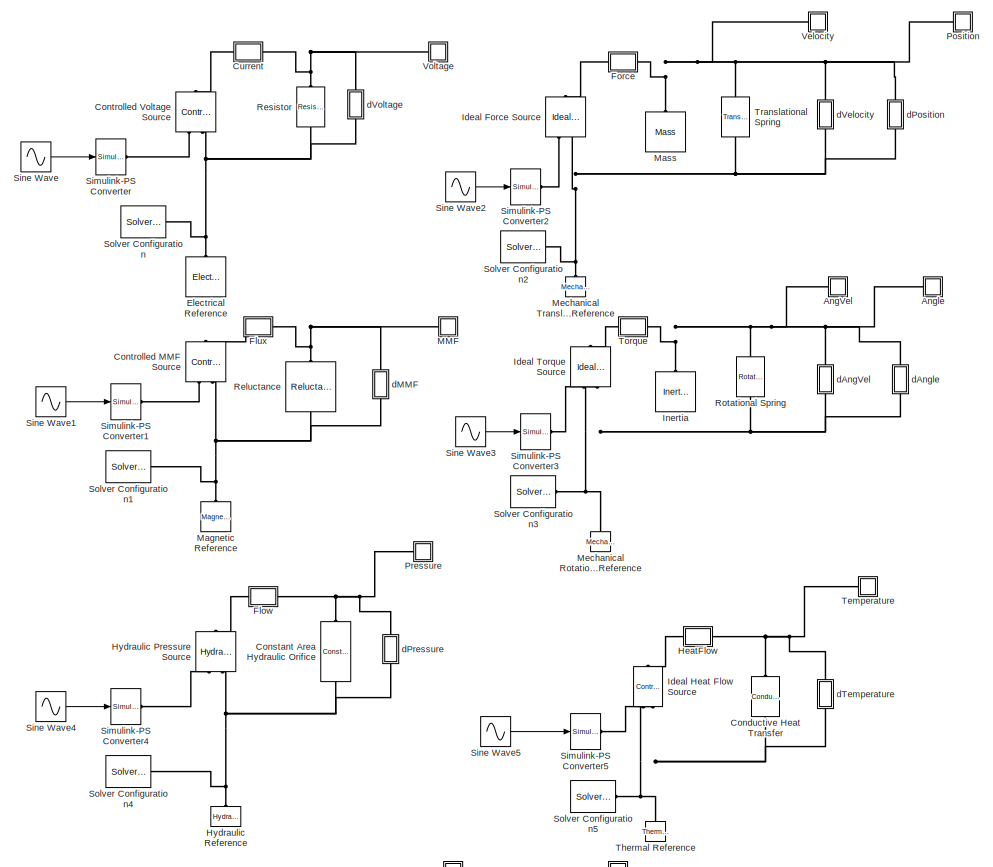
[diagram: root canvas - part 1/3, top center region]
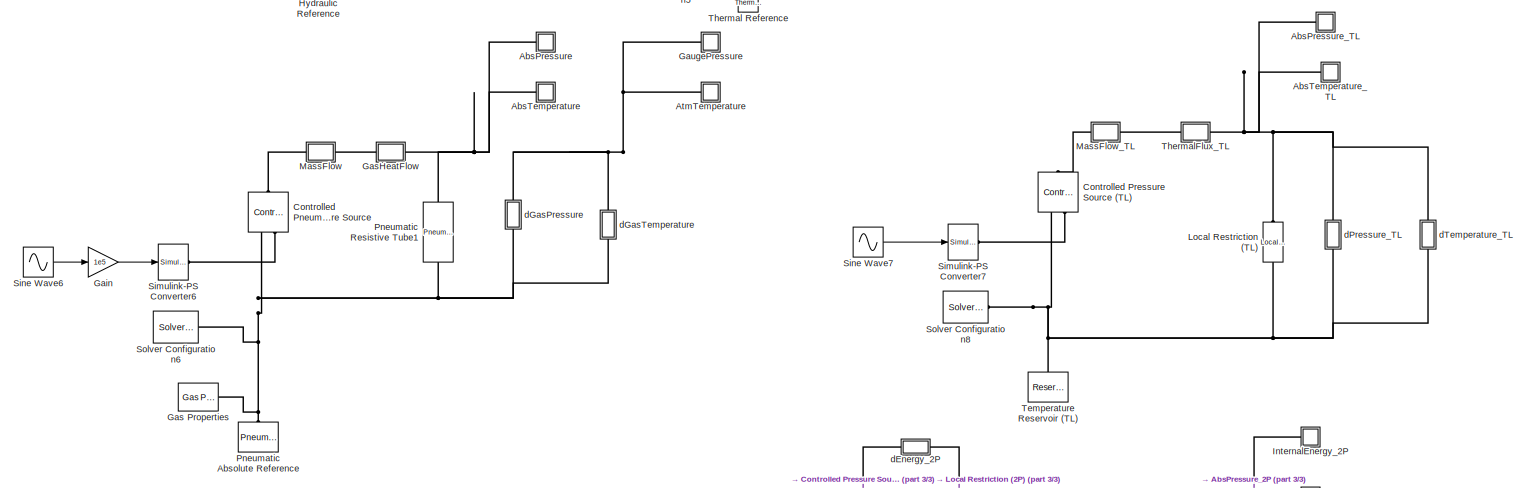
[diagram: root canvas - part 2/3, full width, middle band]
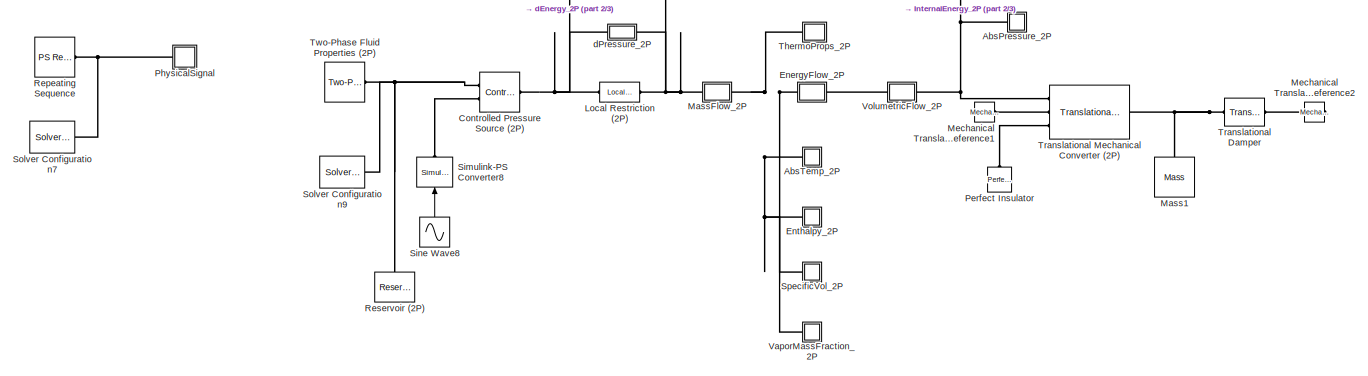
[diagram: root canvas - part 3/3, full width, bottom band]
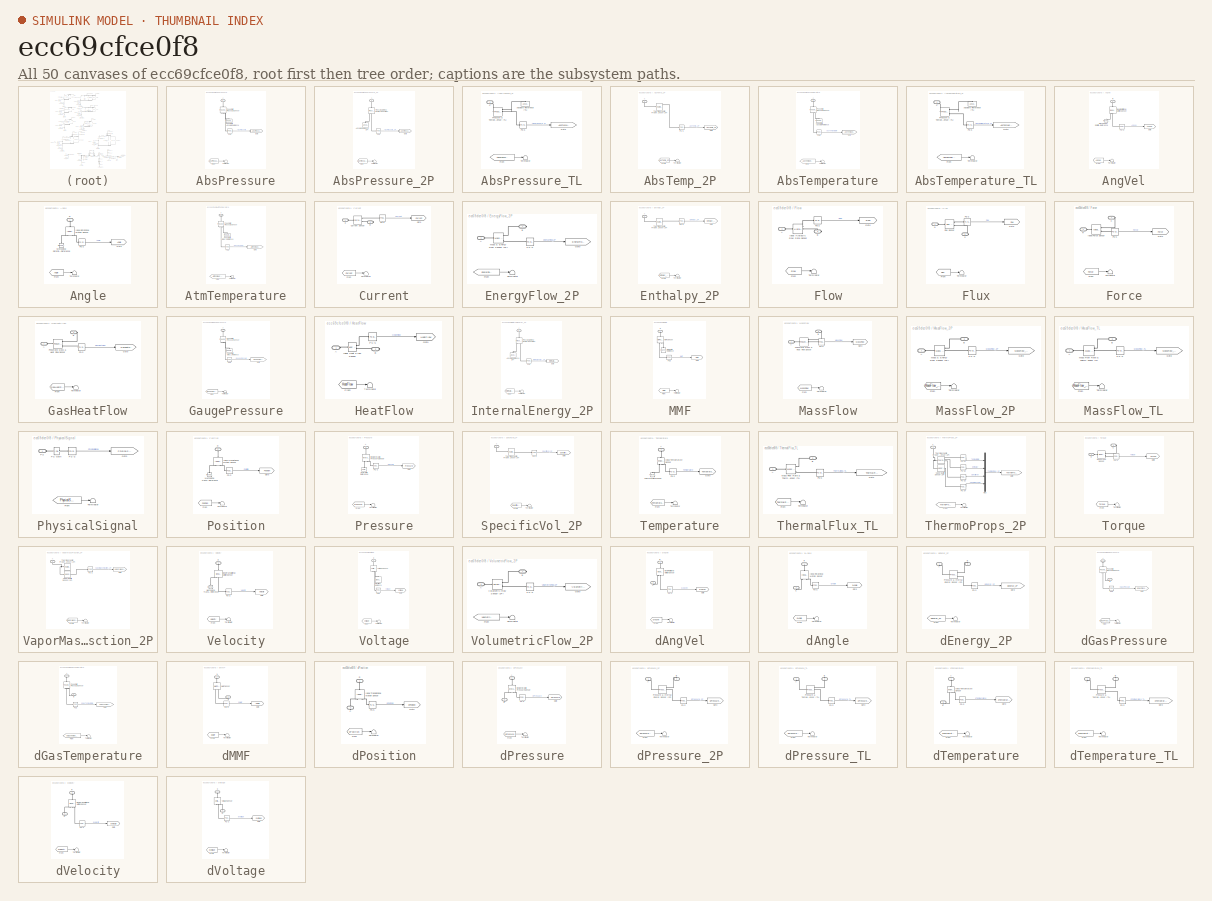
[diagram: thumbnail index - all 50 canvases of the model, root first then tree order]
MODEL slx_ecc69cfce0f8
KIND model
CONFIG AbsTol = auto
CONFIG EnableMultiTasking = on
CONFIG FixedStep = auto
CONFIG MaxStep = auto
CONFIG MinStep = auto
CONFIG RelTol = 1e-3
CONFIG SampleTimeConstraint = Unconstrained
CONFIG Solver = ode23t
CONFIG SolverName = ode23t
CONFIG StartTime = 0.0
CONFIG StopTime = 10.0
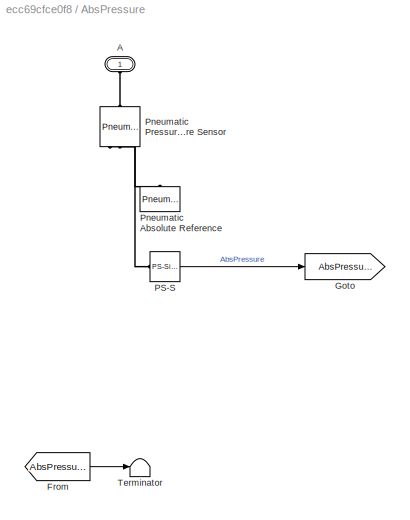
BLOCK [SubSystem] AbsPressure
  AttributesFormatString = [Pa]
  CopyFcn = set_param(gcb,'LinkStatus','inactive');                \nset_param(gcb,'LinkStatus','none');                    \nset_param([gcb '/Goto'],'GotoTag', [get(gcbh,'name')]);\nset_param([gcb '/From'],'GotoTag', [get(gcbh,'name')]);\nh = get_param([gcb, '/PS-S'], 'PortHandles');\nset(h.Outport(1), 'SignalNameFromLabel', [get(gcbh,'name')])\nclear h;  <repeated x43 — deduplicated; at blocks: AbsPressure, AbsPressure_2P, AbsPressure_TL, AbsTemp_2P, AbsTemperature, AbsTemperature_TL, AngVel, Angle, AtmTemperature, Current, Enthalpy_2P, Flow, Flux, Force, GasHeatFlow, GaugePressure, +27 more>
  Description = Simscape Probe
  InitFcn = unit=get_param([gcb '/PS-S'],'Unit');                                              \nset_param(gcb, 'AttributesFormatString', strcat('[', unit,']'));
  NameChangeFcn = set_param([gcb '/Goto'],'GotoTag', [get(gcbh,'name')]);\nset_param([gcb '/From'],'GotoTag', [get(gcbh,'name')]);\nh = get_param([gcb, '/PS-S'], 'PortHandles');\nset(h.Outport(1), 'SignalNameFromLabel', [get(gcbh,'name')])\nclear h;  <repeated x48 — deduplicated; at blocks: AbsPressure, AbsPressure_2P, AbsPressure_TL, AbsTemp_2P, AbsTemperature, AbsTemperature_TL, AngVel, Angle, AtmTemperature, Current, EnergyFlow_2P, Enthalpy_2P, Flow, Flux, Force, GasHeatFlow, +32 more>
  OpenFcn = if exist('logsout', 'var')\n  vname = get(gcbh,'name');                 \n  fHandle = findall(0,'Tag',vname);                         \n  if isempty(fHandle)                                        \n  figure('Tag',vname);                                       \n  end;                                                       \n  figure(findobj('Tag',vname));                             \n  plot(logsout.getEl...<+212ch>  <repeated x14 — deduplicated; at blocks: AbsPressure, AbsPressure_2P, AbsPressure_TL, Enthalpy_2P, GaugePressure, Position, Pressure, Velocity, dGasPressure, dPosition, dPressure, dPressure_2P, dPressure_TL, dVelocity>
  Ports = [0, 0, 0, 0, 0, 1]
  RequestExecContextInheritance = off
BLOCK [PMIOPort] AbsPressure/A
  Side = Left
BLOCK [From] AbsPressure/From
  GotoTag = AbsPressure
BLOCK [Goto] AbsPressure/Goto
  GotoTag = AbsPressure
BLOCK [Reference] AbsPressure/PS-S  REF=nesl_utility/PS-Simulink
Converter
  Ports = [0, 1, 0, 0, 0, 1]
  SourceBlock = nesl_utility/PS-Simulink\nConverter
  SourceProductBaseCode = SS
  SourceProductName = Simscape
  SourceType = PS-Simulink\nConverter
BLOCK [Reference] AbsPressure/Pneumatic Absolute Reference  REF=Pneumatic_lib/Pneumatic Elements/Pneumatic Absolute
Reference
  Ports = [0, 0, 0, 0, 0, 1]
  SourceBlock = Pneumatic_lib/Pneumatic Elements/Pneumatic Absolute\nReference
  SourceType = Pneumatic Absolute\nReference
BLOCK [Reference] AbsPressure/Pneumatic Pressure & Temperature Sensor  REF=Pneumatic_lib/Pneumatic Sensors/Pneumatic Pressure &
Temperature Sensor
  Ports = [0, 0, 0, 0, 0, 1, 3]
  SourceBlock = Pneumatic_lib/Pneumatic Sensors/Pneumatic Pressure &\nTemperature Sensor
  SourceType = Pneumatic Pressure &\nTemperature Sensor
BLOCK [Terminator] AbsPressure/Terminator
BLOCK [SubSystem] AbsPressure_2P
  AttributesFormatString = [Pa]
  Description = Simscape Probe
  InitFcn = unit=get_param([gcb '/PS-S'],'Unit');                                              \nset_param(gcb, 'AttributesFormatString', strcat('[', unit,']'));
  Ports = [0, 0, 0, 0, 0, 1]
  RequestExecContextInheritance = off
BLOCK [PMIOPort] AbsPressure_2P/A
  Side = Left
BLOCK [Reference] AbsPressure_2P/Absolute Reference (2P)  REF=fl_lib/Two-Phase Fluid/Elements/Absolute Reference
(2P)
  Ports = [0, 0, 0, 0, 0, 1]
  SourceBlock = fl_lib/Two-Phase Fluid/Elements/Absolute Reference\n(2P)
  SourceProductBaseCode = SS
  SourceProductName = Simscape
  SourceType = Absolute Reference\n(2P)
BLOCK [From] AbsPressure_2P/From
  GotoTag = AbsPressure_2P
BLOCK [Goto] AbsPressure_2P/Goto
  GotoTag = AbsPressure_2P
BLOCK [Reference] AbsPressure_2P/PS-S  REF=nesl_utility/PS-Simulink
Converter
  Ports = [0, 1, 0, 0, 0, 1]
  SourceBlock = nesl_utility/PS-Simulink\nConverter
  SourceProductBaseCode = SS
  SourceProductName = Simscape
  SourceType = PS-Simulink\nConverter
BLOCK [Reference] AbsPressure_2P/Pressure & Internal Energy Sensor (2P)  REF=fl_lib/Two-Phase Fluid/Sensors/Pressure & Internal
Energy Sensor (2P)
  Ports = [0, 0, 0, 0, 0, 1, 3]
  SourceBlock = fl_lib/Two-Phase Fluid/Sensors/Pressure & Internal\nEnergy Sensor (2P)
  SourceProductBaseCode = SS
  SourceProductName = Simscape
  SourceType = Pressure & Internal\nEnergy Sensor (2P)
BLOCK [Terminator] AbsPressure_2P/Terminator
BLOCK [SubSystem] AbsPressure_TL
  AttributesFormatString = [Pa]
  Description = Simscape Probe
  InitFcn = unit=get_param([gcb '/PS-S'],'Unit');                                              \nset_param(gcb, 'AttributesFormatString', strcat('[', unit,']'));
  Ports = [0, 0, 0, 0, 0, 1]
  RequestExecContextInheritance = off
BLOCK [PMIOPort] AbsPressure_TL/A
  Side = Left
BLOCK [Reference] AbsPressure_TL/Absolute Reference (TL)  REF=fl_lib/Thermal Liquid/Elements/Absolute Reference
(TL)
  Ports = [0, 0, 0, 0, 0, 1]
  SourceBlock = fl_lib/Thermal Liquid/Elements/Absolute Reference\n(TL)
  SourceProductBaseCode = SS
  SourceProductName = Simscape
  SourceType = Absolute Reference\n(TL)
BLOCK [From] AbsPressure_TL/From
  GotoTag = AbsPressure_TL
BLOCK [Goto] AbsPressure_TL/Goto
  GotoTag = AbsPressure_TL
BLOCK [Reference] AbsPressure_TL/PS-S  REF=nesl_utility/PS-Simulink
Converter
  Ports = [0, 1, 0, 0, 0, 1]
  SourceBlock = nesl_utility/PS-Simulink\nConverter
  SourceProductBaseCode = SS
  SourceProductName = Simscape
  SourceType = PS-Simulink\nConverter
BLOCK [Reference] AbsPressure_TL/Pressure & Temperature Sensor (TL)  REF=fl_lib/Thermal Liquid/Sensors/Pressure &
Temperature Sensor
(TL)
  Ports = [0, 0, 0, 0, 0, 1, 3]
  SourceBlock = fl_lib/Thermal Liquid/Sensors/Pressure &\nTemperature Sensor\n(TL)
  SourceProductBaseCode = SS
  SourceProductName = Simscape
  SourceType = Pressure &\nTemperature Sensor\n(TL)
BLOCK [Terminator] AbsPressure_TL/Terminator
BLOCK [SubSystem] AbsTemp_2P
  AttributesFormatString = [K]
  Description = Simscape Probe
  InitFcn = unit=get_param([gcb '/PS-S'],'Unit');                                              \nset_param(gcb, 'AttributesFormatString', strcat('[', unit,']'));
  OpenFcn = if exist('logsout', 'var')\n  vname = get(gcbh,'name');                 \n  fHandle = findall(0,'Tag',vname);                         \n  if isempty(fHandle)                                        \n  figure('Tag',vname);                                       \n  end;                                                       \n  figure(findobj('Tag',vname));                             \n  plot(logsout.getEl...<+214ch>
  Ports = [0, 0, 0, 0, 0, 1]
  RequestExecContextInheritance = off
BLOCK [PMIOPort] AbsTemp_2P/A
  Side = Left
BLOCK [From] AbsTemp_2P/From
  GotoTag = AbsTemp_2P
BLOCK [Goto] AbsTemp_2P/Goto
  GotoTag = AbsTemp_2P
BLOCK [Reference] AbsTemp_2P/PS-S  REF=nesl_utility/PS-Simulink
Converter
  Ports = [0, 1, 0, 0, 0, 1]
  SourceBlock = nesl_utility/PS-Simulink\nConverter
  SourceProductBaseCode = SS
  SourceProductName = Simscape
  SourceType = PS-Simulink\nConverter
BLOCK [Terminator] AbsTemp_2P/Terminator
BLOCK [Reference] AbsTemp_2P/Thermodynamic Properties Sensor (2P)  REF=fl_lib/Two-Phase Fluid/Sensors/Thermodynamic
Properties Sensor
(2P)
  Ports = [0, 0, 0, 0, 0, 1, 4]
  SourceBlock = fl_lib/Two-Phase Fluid/Sensors/Thermodynamic\nProperties Sensor\n(2P)
  SourceProductBaseCode = SS
  SourceProductName = Simscape
  SourceType = Thermodynamic\nProperties Sensor\n(2P)
BLOCK [SubSystem] AbsTemperature
  AttributesFormatString = [K]
  Description = Simscape Probe
  InitFcn = unit=get_param([gcb '/PS-S'],'Unit');                                              \nset_param(gcb, 'AttributesFormatString', strcat('[', unit,']'));
  OpenFcn = if exist('logsout', 'var')\n  vname = get(gcbh,'name');                 \n  fHandle = findall(0,'Tag',vname);                         \n  if isempty(fHandle)                                        \n  figure('Tag',vname);                                       \n  end;                                                       \n  figure(findobj('Tag',vname));                             \n  plot(logsout.getEl...<+215ch>  <repeated x9 — deduplicated; at blocks: AbsTemperature, AbsTemperature_TL, AtmTemperature, EnergyFlow_2P, Temperature, dEnergy_2P, dGasTemperature, dTemperature, dTemperature_TL>
  Ports = [0, 0, 0, 0, 0, 1]
  RequestExecContextInheritance = off
BLOCK [PMIOPort] AbsTemperature/A
  Side = Left
BLOCK [From] AbsTemperature/From
  GotoTag = AbsTemperature
BLOCK [Goto] AbsTemperature/Goto
  GotoTag = AbsTemperature
BLOCK [Reference] AbsTemperature/PS-S  REF=nesl_utility/PS-Simulink
Converter
  Ports = [0, 1, 0, 0, 0, 1]
  SourceBlock = nesl_utility/PS-Simulink\nConverter
  SourceProductBaseCode = SS
  SourceProductName = Simscape
  SourceType = PS-Simulink\nConverter
BLOCK [Reference] AbsTemperature/Pneumatic Absolute Reference  REF=Pneumatic_lib/Pneumatic Elements/Pneumatic Absolute
Reference
  Ports = [0, 0, 0, 0, 0, 1]
  SourceBlock = Pneumatic_lib/Pneumatic Elements/Pneumatic Absolute\nReference
  SourceType = Pneumatic Absolute\nReference
BLOCK [Reference] AbsTemperature/Pneumatic Pressure & Temperature Sensor  REF=Pneumatic_lib/Pneumatic Sensors/Pneumatic Pressure &
Temperature Sensor
  Ports = [0, 0, 0, 0, 0, 1, 3]
  SourceBlock = Pneumatic_lib/Pneumatic Sensors/Pneumatic Pressure &\nTemperature Sensor
  SourceType = Pneumatic Pressure &\nTemperature Sensor
BLOCK [Terminator] AbsTemperature/Terminator
BLOCK [SubSystem] AbsTemperature_TL
  AttributesFormatString = [K]
  Description = Simscape Probe
  InitFcn = unit=get_param([gcb '/PS-S'],'Unit');                                              \nset_param(gcb, 'AttributesFormatString', strcat('[', unit,']'));
  Ports = [0, 0, 0, 0, 0, 1]
  RequestExecContextInheritance = off
BLOCK [PMIOPort] AbsTemperature_TL/A
  Side = Left
BLOCK [Reference] AbsTemperature_TL/Absolute Reference (TL)  REF=fl_lib/Thermal Liquid/Elements/Absolute Reference
(TL)
  Ports = [0, 0, 0, 0, 0, 1]
  SourceBlock = fl_lib/Thermal Liquid/Elements/Absolute Reference\n(TL)
  SourceProductBaseCode = SS
  SourceProductName = Simscape
  SourceType = Absolute Reference\n(TL)
BLOCK [From] AbsTemperature_TL/From
  GotoTag = AbsTemperature_TL
BLOCK [Goto] AbsTemperature_TL/Goto
  GotoTag = AbsTemperature_TL
BLOCK [Reference] AbsTemperature_TL/PS-S  REF=nesl_utility/PS-Simulink
Converter
  Ports = [0, 1, 0, 0, 0, 1]
  SourceBlock = nesl_utility/PS-Simulink\nConverter
  SourceProductBaseCode = SS
  SourceProductName = Simscape
  SourceType = PS-Simulink\nConverter
BLOCK [Reference] AbsTemperature_TL/Pressure & Temperature Sensor (TL)  REF=fl_lib/Thermal Liquid/Sensors/Pressure &
Temperature Sensor
(TL)
  Ports = [0, 0, 0, 0, 0, 1, 3]
  SourceBlock = fl_lib/Thermal Liquid/Sensors/Pressure &\nTemperature Sensor\n(TL)
  SourceProductBaseCode = SS
  SourceProductName = Simscape
  SourceType = Pressure &\nTemperature Sensor\n(TL)
BLOCK [Terminator] AbsTemperature_TL/Terminator
BLOCK [SubSystem] AngVel
  AttributesFormatString = [rad/s]
  Description = Simscape Probe
  InitFcn = unit=get_param([gcb '/PS-S'],'Unit');                                              \nset_param(gcb, 'AttributesFormatString', strcat('[', unit,']'));
  OpenFcn = if exist('logsout', 'var')\n  vname = get(gcbh,'name');                 \n  fHandle = findall(0,'Tag',vname);                         \n  if isempty(fHandle)                                        \n  figure('Tag',vname);                                       \n  end;                                                       \n  figure(findobj('Tag',vname));                             \n  plot(logsout.getEl...<+220ch>
  Ports = [0, 0, 0, 0, 0, 1]
  RequestExecContextInheritance = off
BLOCK [From] AngVel/From
  GotoTag = AngVel
BLOCK [Goto] AngVel/Goto
  GotoTag = AngVel
BLOCK [Reference] AngVel/Ideal Rotational Motion Sensor  REF=fl_lib/Mechanical/Mechanical Sensors/Ideal Rotational
Motion Sensor
  Ports = [0, 0, 0, 0, 0, 1, 3]
  SourceBlock = fl_lib/Mechanical/Mechanical Sensors/Ideal Rotational\nMotion Sensor
  SourceProductBaseCode = SS
  SourceProductName = Simscape
  SourceType = Ideal Rotational\nMotion Sensor
BLOCK [Reference] AngVel/Mechanical Rotational Reference  REF=fl_lib/Mechanical/Rotational Elements/Mechanical
Rotational Reference
  Ports = [0, 0, 0, 0, 0, 1]
  SourceBlock = fl_lib/Mechanical/Rotational Elements/Mechanical\nRotational Reference
  SourceProductBaseCode = SS
  SourceProductName = Simscape
  SourceType = Mechanical\nRotational Reference
BLOCK [Reference] AngVel/PS-S  REF=nesl_utility/PS-Simulink
Converter
  Ports = [0, 1, 0, 0, 0, 1]
  SourceBlock = nesl_utility/PS-Simulink\nConverter
  SourceProductBaseCode = SS
  SourceProductName = Simscape
  SourceType = PS-Simulink\nConverter
BLOCK [PMIOPort] AngVel/R
  Side = Left
BLOCK [Terminator] AngVel/Terminator
BLOCK [SubSystem] Angle
  AttributesFormatString = [rad]
  Description = Simscape Probe
  InitFcn = unit=get_param([gcb '/PS-S'],'Unit');                                              \nset_param(gcb, 'AttributesFormatString', strcat('[', unit,']'));
  OpenFcn = if exist('logsout', 'var')\n  vname = get(gcbh,'name');                 \n  fHandle = findall(0,'Tag',vname);                         \n  if isempty(fHandle)                                        \n  figure('Tag',vname);                                       \n  end;                                                       \n  figure(findobj('Tag',vname));                             \n  plot(logsout.getEl...<+209ch>  <repeated x3 — deduplicated; at blocks: Angle, Force, dAngle>
  Ports = [0, 0, 0, 0, 0, 1]
  RequestExecContextInheritance = off
BLOCK [From] Angle/From
  GotoTag = Angle
BLOCK [Goto] Angle/Goto
  GotoTag = Angle
BLOCK [Reference] Angle/Ideal Rotational Motion Sensor  REF=fl_lib/Mechanical/Mechanical Sensors/Ideal Rotational
Motion Sensor
  Ports = [0, 0, 0, 0, 0, 1, 3]
  SourceBlock = fl_lib/Mechanical/Mechanical Sensors/Ideal Rotational\nMotion Sensor
  SourceProductBaseCode = SS
  SourceProductName = Simscape
  SourceType = Ideal Rotational\nMotion Sensor
BLOCK [Reference] Angle/Mechanical Rotational Reference  REF=fl_lib/Mechanical/Rotational Elements/Mechanical
Rotational Reference
  Ports = [0, 0, 0, 0, 0, 1]
  SourceBlock = fl_lib/Mechanical/Rotational Elements/Mechanical\nRotational Reference
  SourceProductBaseCode = SS
  SourceProductName = Simscape
  SourceType = Mechanical\nRotational Reference
BLOCK [Reference] Angle/PS-S  REF=nesl_utility/PS-Simulink
Converter
  Ports = [0, 1, 0, 0, 0, 1]
  SourceBlock = nesl_utility/PS-Simulink\nConverter
  SourceProductBaseCode = SS
  SourceProductName = Simscape
  SourceType = PS-Simulink\nConverter
BLOCK [PMIOPort] Angle/R
  Side = Left
BLOCK [Terminator] Angle/Terminator
BLOCK [SubSystem] AtmTemperature
  AttributesFormatString = [K]
  Description = Simscape Probe
  InitFcn = unit=get_param([gcb '/PS-S'],'Unit');                                              \nset_param(gcb, 'AttributesFormatString', strcat('[', unit,']'));
  Ports = [0, 0, 0, 0, 0, 1]
  RequestExecContextInheritance = off
BLOCK [PMIOPort] AtmTemperature/A
  Side = Left
BLOCK [From] AtmTemperature/From
  GotoTag = AtmTemperature
BLOCK [Goto] AtmTemperature/Goto
  GotoTag = AtmTemperature
BLOCK [Reference] AtmTemperature/PS-S  REF=nesl_utility/PS-Simulink
Converter
  Ports = [0, 1, 0, 0, 0, 1]
  SourceBlock = nesl_utility/PS-Simulink\nConverter
  SourceProductBaseCode = SS
  SourceProductName = Simscape
  SourceType = PS-Simulink\nConverter
BLOCK [Reference] AtmTemperature/Pneumatic Atmospheric Reference  REF=Pneumatic_lib/Pneumatic Elements/Pneumatic
Atmospheric
Reference
  Ports = [0, 0, 0, 0, 0, 1]
  SourceBlock = Pneumatic_lib/Pneumatic Elements/Pneumatic\nAtmospheric\nReference
  SourceType = Pneumatic\nAtmospheric\nReference
BLOCK [Reference] AtmTemperature/Pneumatic Pressure & Temperature Sensor  REF=Pneumatic_lib/Pneumatic Sensors/Pneumatic Pressure &
Temperature Sensor
  Ports = [0, 0, 0, 0, 0, 1, 3]
  SourceBlock = Pneumatic_lib/Pneumatic Sensors/Pneumatic Pressure &\nTemperature Sensor
  SourceType = Pneumatic Pressure &\nTemperature Sensor
BLOCK [Terminator] AtmTemperature/Terminator
BLOCK [Reference] Conductive Heat Transfer  REF=fl_lib/Thermal/Thermal Elements/Conductive Heat
Transfer
  Ports = [0, 0, 0, 0, 0, 1, 1]
  SourceBlock = fl_lib/Thermal/Thermal Elements/Conductive Heat\nTransfer
  SourceProductBaseCode = SS
  SourceProductName = Simscape
  SourceType = Conductive Heat\nTransfer
BLOCK [Reference] Constant Area Hydraulic Orifice  REF=fl_lib/Hydraulic/Hydraulic Elements/Constant Area
Hydraulic Orifice
  Ports = [0, 0, 0, 0, 0, 1, 1]
  SourceBlock = fl_lib/Hydraulic/Hydraulic Elements/Constant Area\nHydraulic Orifice
  SourceProductBaseCode = SS
  SourceProductName = Simscape
  SourceType = Constant Area\nHydraulic Orifice
BLOCK [Reference] Controlled MMF Source  REF=fl_lib/Magnetic/Magnetic Sources/Controlled MMF
Source
  Ports = [0, 0, 0, 0, 0, 1, 2]
  SourceBlock = fl_lib/Magnetic/Magnetic Sources/Controlled MMF\nSource
  SourceProductBaseCode = SS
  SourceProductName = Simscape
  SourceType = Controlled MMF\nSource
BLOCK [Reference] Controlled Pneumatic Pressure Source  REF=Pneumatic_lib/Pneumatic Sources/Controlled Pneumatic
Pressure Source
  Ports = [0, 0, 0, 0, 0, 1, 2]
  SourceBlock = Pneumatic_lib/Pneumatic Sources/Controlled Pneumatic\nPressure Source
  SourceType = Controlled Pneumatic\nPressure Source
BLOCK [Reference] Controlled Pressure Source (2P)  REF=fl_lib/Two-Phase Fluid/Sources/Controlled Pressure
Source (2P)
  Ports = [0, 0, 0, 0, 0, 2, 1]
  SourceBlock = fl_lib/Two-Phase Fluid/Sources/Controlled Pressure\nSource (2P)
  SourceProductBaseCode = SS
  SourceProductName = Simscape
  SourceType = Controlled Pressure\nSource (2P)
BLOCK [Reference] Controlled Pressure Source (TL)  REF=fl_lib/Thermal Liquid/Sources/Controlled Pressure
Source (TL)
  Ports = [0, 0, 0, 0, 0, 2, 1]
  SourceBlock = fl_lib/Thermal Liquid/Sources/Controlled Pressure\nSource (TL)
  SourceProductBaseCode = SS
  SourceProductName = Simscape
  SourceType = Controlled Pressure\nSource (TL)
BLOCK [Reference] Controlled Voltage Source  REF=fl_lib/Electrical/Electrical Sources/Controlled Voltage
Source
  Ports = [0, 0, 0, 0, 0, 1, 2]
  SourceBlock = fl_lib/Electrical/Electrical Sources/Controlled Voltage\nSource
  SourceProductBaseCode = SS
  SourceProductName = Simscape
  SourceType = Controlled Voltage\nSource
BLOCK [SubSystem] Current
  AttributesFormatString = [A]
  Description = Simscape Probe
  InitFcn = unit=get_param([gcb '/PS-S'],'Unit');                                              \nset_param(gcb, 'AttributesFormatString', strcat('[', unit,']'));
  OpenFcn = if exist('logsout', 'var')\n  vname = get(gcbh,'name');                 \n  fHandle = findall(0,'Tag',vname);                         \n  if isempty(fHandle)                                        \n  figure('Tag',vname);                                       \n  end;                                                       \n  figure(findobj('Tag',vname));                             \n  plot(logsout.getEl...<+211ch>  <repeated x3 — deduplicated; at blocks: Current, Voltage, dVoltage>
  Ports = [0, 0, 0, 0, 0, 1, 1]
  RequestExecContextInheritance = off
BLOCK [Reference] Current/Current Sensor  REF=fl_lib/Electrical/Electrical Sensors/Current Sensor
  Ports = [0, 0, 0, 0, 0, 1, 2]
  SourceBlock = fl_lib/Electrical/Electrical Sensors/Current Sensor
  SourceProductBaseCode = SS
  SourceProductName = Simscape
  SourceType = Current Sensor
BLOCK [From] Current/From
  GotoTag = Current
BLOCK [Goto] Current/Goto
  GotoTag = Current
BLOCK [Reference] Current/PS-S  REF=nesl_utility/PS-Simulink
Converter
  Ports = [0, 1, 0, 0, 0, 1]
  SourceBlock = nesl_utility/PS-Simulink\nConverter
  SourceProductBaseCode = SS
  SourceProductName = Simscape
  SourceType = PS-Simulink\nConverter
BLOCK [Terminator] Current/Terminator
BLOCK [PMIOPort] Current/m
  Port = 2
  Side = Right
BLOCK [PMIOPort] Current/p
  Side = Left
BLOCK [Reference] Electrical Reference  REF=fl_lib/Electrical/Electrical Elements/Electrical Reference
  Ports = [0, 0, 0, 0, 0, 1]
  SourceBlock = fl_lib/Electrical/Electrical Elements/Electrical Reference
  SourceProductBaseCode = SS
  SourceProductName = Simscape
  SourceType = Electrical Reference
BLOCK [SubSystem] EnergyFlow_2P
  AttributesFormatString = [kW]
  CopyFcn = if strcmp(get_param(gcb, 'LinkStatus'),'implicit') == 0;\nset_param(gcb,'LinkStatus','inactive');                \nset_param(gcb,'LinkStatus','none');    \nend                \nset_param([gcb '/Goto'],'GotoTag', [get(gcbh,'name')]);\nset_param([gcb '/From'],'GotoTag', [get(gcbh,'name')]);\nh = get_param([gcb, '/PS-S'], 'PortHandles');\nset(h.Outport(1), 'SignalNameFromLabel', [get(gcbh,'name')])\nclear h;  <repeated x6 — deduplicated; at blocks: EnergyFlow_2P, MassFlow_2P, ThermoProps_2P, VolumetricFlow_2P, dEnergy_2P, dPressure_2P>
  Description = Simscape Probe
  InitFcn = unit=get_param([gcb '/PS-S'],'Unit');                                              \nset_param(gcb, 'AttributesFormatString', strcat('[', unit,']'));
  Ports = [0, 0, 0, 0, 0, 1, 1]
  RequestExecContextInheritance = off
BLOCK [PMIOPort] EnergyFlow_2P/A
  Side = Left
BLOCK [PMIOPort] EnergyFlow_2P/B
  Port = 2
  Side = Right
BLOCK [From] EnergyFlow_2P/From
  GotoTag = EnergyFlow_2P
BLOCK [Goto] EnergyFlow_2P/Goto
  GotoTag = EnergyFlow_2P
BLOCK [Reference] EnergyFlow_2P/Mass & Energy Flow Sensor (2P)  REF=fl_lib/Two-Phase Fluid/Sensors/Mass & Energy Flow
Rate Sensor (2P)
  Ports = [0, 0, 0, 0, 0, 1, 3]
  SourceBlock = fl_lib/Two-Phase Fluid/Sensors/Mass & Energy Flow\nRate Sensor (2P)
  SourceProductBaseCode = SS
  SourceProductName = Simscape
  SourceType = Mass & Energy Flow\nRate Sensor (2P)
BLOCK [Reference] EnergyFlow_2P/PS-S  REF=nesl_utility/PS-Simulink
Converter
  Ports = [0, 1, 0, 0, 0, 1]
  SourceBlock = nesl_utility/PS-Simulink\nConverter
  SourceProductBaseCode = SS
  SourceProductName = Simscape
  SourceType = PS-Simulink\nConverter
BLOCK [Terminator] EnergyFlow_2P/Terminator
BLOCK [SubSystem] Enthalpy_2P
  AttributesFormatString = [kJ/kg]
  Description = Simscape Probe
  InitFcn = unit=get_param([gcb '/PS-S'],'Unit');                                              \nset_param(gcb, 'AttributesFormatString', strcat('[', unit,']'));
  Ports = [0, 0, 0, 0, 0, 1]
  RequestExecContextInheritance = off
BLOCK [PMIOPort] Enthalpy_2P/A
  Side = Left
BLOCK [From] Enthalpy_2P/From
  GotoTag = Enthalpy_2P
BLOCK [Goto] Enthalpy_2P/Goto
  GotoTag = Enthalpy_2P
BLOCK [Reference] Enthalpy_2P/PS-S  REF=nesl_utility/PS-Simulink
Converter
  Ports = [0, 1, 0, 0, 0, 1]
  SourceBlock = nesl_utility/PS-Simulink\nConverter
  SourceProductBaseCode = SS
  SourceProductName = Simscape
  SourceType = PS-Simulink\nConverter
BLOCK [Terminator] Enthalpy_2P/Terminator
BLOCK [Reference] Enthalpy_2P/Thermodynamic Properties Sensor (2P)  REF=fl_lib/Two-Phase Fluid/Sensors/Thermodynamic
Properties Sensor
(2P)
  Ports = [0, 0, 0, 0, 0, 1, 4]
  SourceBlock = fl_lib/Two-Phase Fluid/Sensors/Thermodynamic\nProperties Sensor\n(2P)
  SourceProductBaseCode = SS
  SourceProductName = Simscape
  SourceType = Thermodynamic\nProperties Sensor\n(2P)
BLOCK [SubSystem] Flow
  AttributesFormatString = [m^3/s]
  Description = Simscape Probe
  InitFcn = unit=get_param([gcb '/PS-S'],'Unit');                                              \nset_param(gcb, 'AttributesFormatString', strcat('[', unit,']'));
  OpenFcn = if exist('logsout', 'var')\n  vname = get(gcbh,'name');                 \n  fHandle = findall(0,'Tag',vname);                         \n  if isempty(fHandle)                                        \n  figure('Tag',vname);                                       \n  end;                                                       \n  figure(findobj('Tag',vname));                             \n  plot(logsout.getEl...<+208ch>
  Ports = [0, 0, 0, 0, 0, 1, 1]
  RequestExecContextInheritance = off
BLOCK [PMIOPort] Flow/A
  Side = Left
BLOCK [PMIOPort] Flow/B
  Port = 2
  Side = Right
BLOCK [From] Flow/From
  GotoTag = Flow
BLOCK [Goto] Flow/Goto
  GotoTag = Flow
BLOCK [Reference] Flow/Ideal Hydraulic Flow Rate Sensor  REF=fl_lib/Hydraulic/Hydraulic Sensors/Hydraulic Flow Rate
Sensor
  Ports = [0, 0, 0, 0, 0, 1, 3]
  SourceBlock = fl_lib/Hydraulic/Hydraulic Sensors/Hydraulic Flow Rate\nSensor
  SourceProductBaseCode = SS
  SourceProductName = Simscape
  SourceType = Hydraulic Flow Rate\nSensor
BLOCK [Reference] Flow/PS-S  REF=nesl_utility/PS-Simulink
Converter
  Ports = [0, 1, 0, 0, 0, 1]
  SourceBlock = nesl_utility/PS-Simulink\nConverter
  SourceProductBaseCode = SS
  SourceProductName = Simscape
  SourceType = PS-Simulink\nConverter
BLOCK [Terminator] Flow/Terminator
BLOCK [SubSystem] Flux
  AttributesFormatString = [Wb]
  Description = Simscape Probe
  InitFcn = unit=get_param([gcb '/PS-S'],'Unit');                                              \nset_param(gcb, 'AttributesFormatString', strcat('[', unit,']'));
  OpenFcn = if exist('logsout', 'var')\n  vname = get(gcbh,'name');                 \n  fHandle = findall(0,'Tag',vname);                         \n  if isempty(fHandle)                                        \n  figure('Tag',vname);                                       \n  end;                                                       \n  figure(findobj('Tag',vname));                             \n  plot(logsout.getEl...<+208ch>
  Ports = [0, 0, 0, 0, 0, 1, 1]
  RequestExecContextInheritance = off
BLOCK [Reference] Flux/Flux Sensor  REF=fl_lib/Magnetic/Magnetic Sensors/Flux Sensor
  Ports = [0, 0, 0, 0, 0, 1, 2]
  SourceBlock = fl_lib/Magnetic/Magnetic Sensors/Flux Sensor
  SourceProductBaseCode = SS
  SourceProductName = Simscape
  SourceType = Flux Sensor
BLOCK [From] Flux/From
  GotoTag = Flux
BLOCK [Goto] Flux/Goto
  GotoTag = Flux
BLOCK [PMIOPort] Flux/N
  Side = Left
BLOCK [Reference] Flux/PS-S  REF=nesl_utility/PS-Simulink
Converter
  Ports = [0, 1, 0, 0, 0, 1]
  SourceBlock = nesl_utility/PS-Simulink\nConverter
  SourceProductBaseCode = SS
  SourceProductName = Simscape
  SourceType = PS-Simulink\nConverter
BLOCK [PMIOPort] Flux/S
  Port = 2
  Side = Right
BLOCK [Terminator] Flux/Terminator
BLOCK [SubSystem] Force
  AttributesFormatString = [N]
  Description = Simscape Probe
  InitFcn = unit=get_param([gcb '/PS-S'],'Unit');                                              \nset_param(gcb, 'AttributesFormatString', strcat('[', unit,']'));
  Ports = [0, 0, 0, 0, 0, 1, 1]
  RequestExecContextInheritance = off
BLOCK [PMIOPort] Force/C
  Port = 2
  Side = Right
BLOCK [From] Force/From
  GotoTag = Force
BLOCK [Goto] Force/Goto
  GotoTag = Force
BLOCK [Reference] Force/Ideal Force Sensor  REF=fl_lib/Mechanical/Mechanical Sensors/Ideal Force Sensor
  Ports = [0, 0, 0, 0, 0, 1, 2]
  SourceBlock = fl_lib/Mechanical/Mechanical Sensors/Ideal Force Sensor
  SourceProductBaseCode = SS
  SourceProductName = Simscape
  SourceType = Ideal Force Sensor
BLOCK [Reference] Force/PS-S  REF=nesl_utility/PS-Simulink
Converter
  Ports = [0, 1, 0, 0, 0, 1]
  SourceBlock = nesl_utility/PS-Simulink\nConverter
  SourceProductBaseCode = SS
  SourceProductName = Simscape
  SourceType = PS-Simulink\nConverter
BLOCK [PMIOPort] Force/R
  Side = Left
BLOCK [Terminator] Force/Terminator
BLOCK [Gain] Gain
  Gain = 1e5
  OutDataTypeStr = Inherit: Inherit via internal rule
  ParamDataTypeStr = Inherit: Inherit via internal rule
  SaturateOnIntegerOverflow = off
BLOCK [Reference] Gas Properties  REF=Pneumatic_lib/Pneumatic Utilities/Gas Properties
  Ports = [0, 0, 0, 0, 0, 0, 1]
  SourceBlock = Pneumatic_lib/Pneumatic Utilities/Gas Properties
  SourceType = Gas Properties
BLOCK [SubSystem] GasHeatFlow
  AttributesFormatString = [J/s]
  Description = Simscape Probe
  InitFcn = unit=get_param([gcb '/PS-S'],'Unit');                                              \nset_param(gcb, 'AttributesFormatString', strcat('[', unit,']'));
  OpenFcn = if exist('logsout', 'var')\n  vname = get(gcbh,'name');                 \n  fHandle = findall(0,'Tag',vname);                         \n  if isempty(fHandle)                                        \n  figure('Tag',vname);                                       \n  end;                                                       \n  figure(findobj('Tag',vname));                             \n  plot(logsout.getEl...<+213ch>  <repeated x5 — deduplicated; at blocks: GasHeatFlow, HeatFlow, MassFlow, MassFlow_2P, MassFlow_TL>
  Ports = [0, 0, 0, 0, 0, 1, 1]
  RequestExecContextInheritance = off
BLOCK [PMIOPort] GasHeatFlow/A
  Side = Left
BLOCK [PMIOPort] GasHeatFlow/B
  Port = 2
  Side = Right
BLOCK [From] GasHeatFlow/From
  GotoTag = GasHeatFlow
BLOCK [Goto] GasHeatFlow/Goto
  GotoTag = GasHeatFlow
BLOCK [Reference] GasHeatFlow/PS-S  REF=nesl_utility/PS-Simulink
Converter
  Ports = [0, 1, 0, 0, 0, 1]
  SourceBlock = nesl_utility/PS-Simulink\nConverter
  SourceProductBaseCode = SS
  SourceProductName = Simscape
  SourceType = PS-Simulink\nConverter
BLOCK [Reference] GasHeatFlow/Pneumatic Mass & Heat Flow Sensor  REF=Pneumatic_lib/Pneumatic Sensors/Pneumatic Mass &
Heat Flow Sensor
  Ports = [0, 0, 0, 0, 0, 1, 3]
  SourceBlock = Pneumatic_lib/Pneumatic Sensors/Pneumatic Mass &\nHeat Flow Sensor
  SourceType = Pneumatic Mass &\nHeat Flow Sensor
BLOCK [Terminator] GasHeatFlow/Terminator
BLOCK [SubSystem] GaugePressure
  AttributesFormatString = [Pa]
  Description = Simscape Probe
  InitFcn = unit=get_param([gcb '/PS-S'],'Unit');                                              \nset_param(gcb, 'AttributesFormatString', strcat('[', unit,']'));
  Ports = [0, 0, 0, 0, 0, 1]
  RequestExecContextInheritance = off
BLOCK [PMIOPort] GaugePressure/A
  Side = Left
BLOCK [From] GaugePressure/From
  GotoTag = GaugePressure
BLOCK [Goto] GaugePressure/Goto
  GotoTag = GaugePressure
BLOCK [Reference] GaugePressure/PS-S  REF=nesl_utility/PS-Simulink
Converter
  Ports = [0, 1, 0, 0, 0, 1]
  SourceBlock = nesl_utility/PS-Simulink\nConverter
  SourceProductBaseCode = SS
  SourceProductName = Simscape
  SourceType = PS-Simulink\nConverter
BLOCK [Reference] GaugePressure/Pneumatic Atmospheric Reference  REF=Pneumatic_lib/Pneumatic Elements/Pneumatic
Atmospheric
Reference
  Ports = [0, 0, 0, 0, 0, 1]
  SourceBlock = Pneumatic_lib/Pneumatic Elements/Pneumatic\nAtmospheric\nReference
  SourceType = Pneumatic\nAtmospheric\nReference
BLOCK [Reference] GaugePressure/Pneumatic Pressure & Temperature Sensor  REF=Pneumatic_lib/Pneumatic Sensors/Pneumatic Pressure &
Temperature Sensor
  Ports = [0, 0, 0, 0, 0, 1, 3]
  SourceBlock = Pneumatic_lib/Pneumatic Sensors/Pneumatic Pressure &\nTemperature Sensor
  SourceType = Pneumatic Pressure &\nTemperature Sensor
BLOCK [Terminator] GaugePressure/Terminator
BLOCK [SubSystem] HeatFlow
  AttributesFormatString = [J/s]
  Description = Simscape Probe
  InitFcn = unit=get_param([gcb '/PS-S'],'Unit');                                              \nset_param(gcb, 'AttributesFormatString', strcat('[', unit,']'));
  Ports = [0, 0, 0, 0, 0, 1, 1]
  RequestExecContextInheritance = off
BLOCK [PMIOPort] HeatFlow/A
  Side = Left
BLOCK [PMIOPort] HeatFlow/B
  Port = 2
  Side = Right
BLOCK [From] HeatFlow/From
  GotoTag = HeatFlow
BLOCK [Goto] HeatFlow/Goto
  GotoTag = HeatFlow
BLOCK [Reference] HeatFlow/Ideal Heat Flow Sensor  REF=fl_lib/Thermal/Thermal Sensors/Heat Flow Rate
Sensor
  Ports = [0, 0, 0, 0, 0, 1, 2]
  SourceBlock = fl_lib/Thermal/Thermal Sensors/Heat Flow Rate\nSensor
  SourceProductBaseCode = SS
  SourceProductName = Simscape
  SourceType = Heat Flow Rate\nSensor
BLOCK [Reference] HeatFlow/PS-S  REF=nesl_utility/PS-Simulink
Converter
  Ports = [0, 1, 0, 0, 0, 1]
  SourceBlock = nesl_utility/PS-Simulink\nConverter
  SourceProductBaseCode = SS
  SourceProductName = Simscape
  SourceType = PS-Simulink\nConverter
BLOCK [Terminator] HeatFlow/Terminator
BLOCK [Reference] Hydraulic Pressure Source  REF=fl_lib/Hydraulic/Hydraulic Sources/Hydraulic Pressure
Source
  Ports = [0, 0, 0, 0, 0, 1, 2]
  SourceBlock = fl_lib/Hydraulic/Hydraulic Sources/Hydraulic Pressure\nSource
  SourceProductBaseCode = SS
  SourceProductName = Simscape
  SourceType = Hydraulic Pressure\nSource
BLOCK [Reference] Hydraulic Reference  REF=fl_lib/Hydraulic/Hydraulic Elements/Hydraulic Reference
  Ports = [0, 0, 0, 0, 0, 1]
  SourceBlock = fl_lib/Hydraulic/Hydraulic Elements/Hydraulic Reference
  SourceProductBaseCode = SS
  SourceProductName = Simscape
  SourceType = Hydraulic Reference
BLOCK [Reference] Ideal Force Source  REF=fl_lib/Mechanical/Mechanical Sources/Ideal Force Source
  Ports = [0, 0, 0, 0, 0, 1, 2]
  SourceBlock = fl_lib/Mechanical/Mechanical Sources/Ideal Force Source
  SourceProductBaseCode = SS
  SourceProductName = Simscape
  SourceType = Ideal Force Source
BLOCK [Reference] Ideal Heat Flow Source  REF=fl_lib/Thermal/Thermal Sources/Controlled Heat Flow
Rate Source
  Ports = [0, 0, 0, 0, 0, 1, 2]
  SourceBlock = fl_lib/Thermal/Thermal Sources/Controlled Heat Flow\nRate Source
  SourceProductBaseCode = SS
  SourceProductName = Simscape
  SourceType = Controlled Heat Flow\nRate Source
BLOCK [Reference] Ideal Torque Source  REF=fl_lib/Mechanical/Mechanical Sources/Ideal Torque Source
  Ports = [0, 0, 0, 0, 0, 1, 2]
  SourceBlock = fl_lib/Mechanical/Mechanical Sources/Ideal Torque Source
  SourceProductBaseCode = SS
  SourceProductName = Simscape
  SourceType = Ideal Torque Source
BLOCK [Reference] Inertia  REF=fl_lib/Mechanical/Rotational Elements/Inertia
  Ports = [0, 0, 0, 0, 0, 1]
  SourceBlock = fl_lib/Mechanical/Rotational Elements/Inertia
  SourceProductBaseCode = SS
  SourceProductName = Simscape
  SourceType = Inertia
BLOCK [SubSystem] InternalEnergy_2P
  AttributesFormatString = [kJ/kg]
  Description = Simscape Probe
  InitFcn = unit=get_param([gcb '/PS-S'],'Unit');                                              \nset_param(gcb, 'AttributesFormatString', strcat('[', unit,']'));
  OpenFcn = if exist('logsout', 'var')\n  vname = get(gcbh,'name');                 \n  fHandle = findall(0,'Tag',vname);                         \n  if isempty(fHandle)                                        \n  figure('Tag',vname);                                       \n  end;                                                       \n  figure(findobj('Tag',vname));                             \n  plot(logsout.getEl...<+219ch>  <repeated x4 — deduplicated; at blocks: InternalEnergy_2P, PhysicalSignal, SpecificVol_2P, VolumetricFlow_2P>
  Ports = [0, 0, 0, 0, 0, 1]
  RequestExecContextInheritance = off
BLOCK [PMIOPort] InternalEnergy_2P/A
  Side = Left
BLOCK [Reference] InternalEnergy_2P/Absolute Reference (2P)  REF=fl_lib/Two-Phase Fluid/Elements/Absolute Reference
(2P)
  Ports = [0, 0, 0, 0, 0, 1]
  SourceBlock = fl_lib/Two-Phase Fluid/Elements/Absolute Reference\n(2P)
  SourceProductBaseCode = SS
  SourceProductName = Simscape
  SourceType = Absolute Reference\n(2P)
BLOCK [From] InternalEnergy_2P/From
  GotoTag = InternalEnergy_2P
BLOCK [Goto] InternalEnergy_2P/Goto
  GotoTag = InternalEnergy_2P
BLOCK [Reference] InternalEnergy_2P/PS-S  REF=nesl_utility/PS-Simulink
Converter
  Ports = [0, 1, 0, 0, 0, 1]
  SourceBlock = nesl_utility/PS-Simulink\nConverter
  SourceProductBaseCode = SS
  SourceProductName = Simscape
  SourceType = PS-Simulink\nConverter
BLOCK [Reference] InternalEnergy_2P/Pressure & Internal Energy Sensor (2P)  REF=fl_lib/Two-Phase Fluid/Sensors/Pressure & Internal
Energy Sensor (2P)
  Ports = [0, 0, 0, 0, 0, 1, 3]
  SourceBlock = fl_lib/Two-Phase Fluid/Sensors/Pressure & Internal\nEnergy Sensor (2P)
  SourceProductBaseCode = SS
  SourceProductName = Simscape
  SourceType = Pressure & Internal\nEnergy Sensor (2P)
BLOCK [Terminator] InternalEnergy_2P/Terminator
BLOCK [Reference] Local Restriction (2P)  REF=fl_lib/Two-Phase Fluid/Elements/Local Restriction
(2P)
  Ports = [0, 0, 0, 0, 0, 1, 1]
  SourceBlock = fl_lib/Two-Phase Fluid/Elements/Local Restriction\n(2P)
  SourceProductBaseCode = SS
  SourceProductName = Simscape
  SourceType = Local Restriction\n(2P)
BLOCK [Reference] Local Restriction (TL)  REF=fl_lib/Thermal Liquid/Elements/Local Restriction
(TL)
  Ports = [0, 0, 0, 0, 0, 1, 1]
  SourceBlock = fl_lib/Thermal Liquid/Elements/Local Restriction\n(TL)
  SourceProductBaseCode = SS
  SourceProductName = Simscape
  SourceType = Local Restriction\n(TL)
BLOCK [SubSystem] MMF
  AttributesFormatString = [A]
  Description = Simscape Probe
  InitFcn = unit=get_param([gcb '/PS-S'],'Unit');                                              \nset_param(gcb, 'AttributesFormatString', strcat('[', unit,']'));
  OpenFcn = if exist('logsout', 'var')\n  vname = get(gcbh,'name');                 \n  fHandle = findall(0,'Tag',vname);                         \n  if isempty(fHandle)                                        \n  figure('Tag',vname);                                       \n  end;                                                       \n  figure(findobj('Tag',vname));                             \n  plot(logsout.getEl...<+207ch>
  Ports = [0, 0, 0, 0, 0, 1]
  RequestExecContextInheritance = off
BLOCK [From] MMF/From
  GotoTag = MMF
BLOCK [Goto] MMF/Goto
  GotoTag = MMF
BLOCK [Reference] MMF/MMF Sensor  REF=fl_lib/Magnetic/Magnetic Sensors/MMF Sensor
  Ports = [0, 0, 0, 0, 0, 1, 2]
  SourceBlock = fl_lib/Magnetic/Magnetic Sensors/MMF Sensor
  SourceProductBaseCode = SS
  SourceProductName = Simscape
  SourceType = MMF Sensor
BLOCK [Reference] MMF/Magnetic Reference  REF=fl_lib/Magnetic/Magnetic Elements/Magnetic Reference
  Ports = [0, 0, 0, 0, 0, 1]
  SourceBlock = fl_lib/Magnetic/Magnetic Elements/Magnetic Reference
  SourceProductBaseCode = SS
  SourceProductName = Simscape
  SourceType = Magnetic Reference
BLOCK [PMIOPort] MMF/N
  Side = Left
BLOCK [Reference] MMF/PS-S  REF=nesl_utility/PS-Simulink
Converter
  Ports = [0, 1, 0, 0, 0, 1]
  SourceBlock = nesl_utility/PS-Simulink\nConverter
  SourceProductBaseCode = SS
  SourceProductName = Simscape
  SourceType = PS-Simulink\nConverter
BLOCK [Terminator] MMF/Terminator
BLOCK [Reference] Magnetic Reference  REF=fl_lib/Magnetic/Magnetic Elements/Magnetic Reference
  Ports = [0, 0, 0, 0, 0, 1]
  SourceBlock = fl_lib/Magnetic/Magnetic Elements/Magnetic Reference
  SourceProductBaseCode = SS
  SourceProductName = Simscape
  SourceType = Magnetic Reference
BLOCK [Reference] Mass  REF=fl_lib/Mechanical/Translational
Elements/Mass
  Ports = [0, 0, 0, 0, 0, 1]
  SourceBlock = fl_lib/Mechanical/Translational\nElements/Mass
  SourceProductBaseCode = SS
  SourceProductName = Simscape
  SourceType = Mass
BLOCK [Reference] Mass1  REF=fl_lib/Mechanical/Translational
Elements/Mass
  Ports = [0, 0, 0, 0, 0, 1]
  SourceBlock = fl_lib/Mechanical/Translational\nElements/Mass
  SourceProductBaseCode = SS
  SourceProductName = Simscape
  SourceType = Mass
BLOCK [SubSystem] MassFlow
  AttributesFormatString = [kg/s]
  Description = Simscape Probe
  InitFcn = unit=get_param([gcb '/PS-S'],'Unit');                                              \nset_param(gcb, 'AttributesFormatString', strcat('[', unit,']'));
  Ports = [0, 0, 0, 0, 0, 1, 1]
  RequestExecContextInheritance = off
BLOCK [PMIOPort] MassFlow/A
  Side = Left
BLOCK [PMIOPort] MassFlow/B
  Port = 2
  Side = Right
BLOCK [From] MassFlow/From
  GotoTag = MassFlow
BLOCK [Goto] MassFlow/Goto
  GotoTag = MassFlow
BLOCK [Reference] MassFlow/PS-S  REF=nesl_utility/PS-Simulink
Converter
  Ports = [0, 1, 0, 0, 0, 1]
  SourceBlock = nesl_utility/PS-Simulink\nConverter
  SourceProductBaseCode = SS
  SourceProductName = Simscape
  SourceType = PS-Simulink\nConverter
BLOCK [Reference] MassFlow/Pneumatic Mass & Heat Flow Sensor  REF=Pneumatic_lib/Pneumatic Sensors/Pneumatic Mass &
Heat Flow Sensor
  Ports = [0, 0, 0, 0, 0, 1, 3]
  SourceBlock = Pneumatic_lib/Pneumatic Sensors/Pneumatic Mass &\nHeat Flow Sensor
  SourceType = Pneumatic Mass &\nHeat Flow Sensor
BLOCK [Terminator] MassFlow/Terminator
BLOCK [SubSystem] MassFlow_2P
  AttributesFormatString = [kg/s]
  Description = Simscape Probe
  InitFcn = unit=get_param([gcb '/PS-S'],'Unit');                                              \nset_param(gcb, 'AttributesFormatString', strcat('[', unit,']'));
  Ports = [0, 0, 0, 0, 0, 1, 1]
  RequestExecContextInheritance = off
BLOCK [PMIOPort] MassFlow_2P/A
  Side = Left
BLOCK [PMIOPort] MassFlow_2P/B
  Port = 2
  Side = Right
BLOCK [From] MassFlow_2P/From
  GotoTag = MassFlow_2P
BLOCK [Goto] MassFlow_2P/Goto
  GotoTag = MassFlow_2P
BLOCK [Reference] MassFlow_2P/Mass & Energy Flow Sensor (2P)  REF=fl_lib/Two-Phase Fluid/Sensors/Mass & Energy Flow
Rate Sensor (2P)
  Ports = [0, 0, 0, 0, 0, 1, 3]
  SourceBlock = fl_lib/Two-Phase Fluid/Sensors/Mass & Energy Flow\nRate Sensor (2P)
  SourceProductBaseCode = SS
  SourceProductName = Simscape
  SourceType = Mass & Energy Flow\nRate Sensor (2P)
BLOCK [Reference] MassFlow_2P/PS-S  REF=nesl_utility/PS-Simulink
Converter
  Ports = [0, 1, 0, 0, 0, 1]
  SourceBlock = nesl_utility/PS-Simulink\nConverter
  SourceProductBaseCode = SS
  SourceProductName = Simscape
  SourceType = PS-Simulink\nConverter
BLOCK [Terminator] MassFlow_2P/Terminator
BLOCK [SubSystem] MassFlow_TL
  AttributesFormatString = [kg/s]
  Description = Simscape Probe
  InitFcn = unit=get_param([gcb '/PS-S'],'Unit');                                              \nset_param(gcb, 'AttributesFormatString', strcat('[', unit,']'));
  Ports = [0, 0, 0, 0, 0, 1, 1]
  RequestExecContextInheritance = off
BLOCK [PMIOPort] MassFlow_TL/A
  Side = Left
BLOCK [PMIOPort] MassFlow_TL/B
  Port = 2
  Side = Right
BLOCK [From] MassFlow_TL/From
  GotoTag = MassFlow_TL
BLOCK [Goto] MassFlow_TL/Goto
  GotoTag = MassFlow_TL
BLOCK [Reference] MassFlow_TL/Mass Flow Rate & Thermal Flux Sensor (TL)  REF=fl_lib/Thermal Liquid/Sensors/Mass & Energy Flow
Rate Sensor (TL)
  Ports = [0, 0, 0, 0, 0, 1, 3]
  SourceBlock = fl_lib/Thermal Liquid/Sensors/Mass & Energy Flow\nRate Sensor (TL)
  SourceProductBaseCode = SS
  SourceProductName = Simscape
  SourceType = Mass & Energy Flow\nRate Sensor (TL)
BLOCK [Reference] MassFlow_TL/PS-S  REF=nesl_utility/PS-Simulink
Converter
  Ports = [0, 1, 0, 0, 0, 1]
  SourceBlock = nesl_utility/PS-Simulink\nConverter
  SourceProductBaseCode = SS
  SourceProductName = Simscape
  SourceType = PS-Simulink\nConverter
BLOCK [Terminator] MassFlow_TL/Terminator
BLOCK [Reference] Mechanical Rotational Reference  REF=fl_lib/Mechanical/Rotational Elements/Mechanical
Rotational Reference
  Ports = [0, 0, 0, 0, 0, 1]
  SourceBlock = fl_lib/Mechanical/Rotational Elements/Mechanical\nRotational Reference
  SourceProductBaseCode = SS
  SourceProductName = Simscape
  SourceType = Mechanical\nRotational Reference
BLOCK [Reference] Mechanical Translational Reference  REF=fl_lib/Mechanical/Translational
Elements/Mechanical
Translational
Reference
  Ports = [0, 0, 0, 0, 0, 1]
  SourceBlock = fl_lib/Mechanical/Translational\nElements/Mechanical\nTranslational\nReference
  SourceProductBaseCode = SS
  SourceProductName = Simscape
  SourceType = Mechanical\nTranslational\nReference
BLOCK [Reference] Mechanical Translational Reference1  REF=fl_lib/Mechanical/Translational
Elements/Mechanical
Translational
Reference
  Ports = [0, 0, 0, 0, 0, 1]
  SourceBlock = fl_lib/Mechanical/Translational\nElements/Mechanical\nTranslational\nReference
  SourceProductBaseCode = SS
  SourceProductName = Simscape
  SourceType = Mechanical\nTranslational\nReference
BLOCK [Reference] Mechanical Translational Reference2  REF=fl_lib/Mechanical/Translational
Elements/Mechanical
Translational
Reference
  Ports = [0, 0, 0, 0, 0, 1]
  SourceBlock = fl_lib/Mechanical/Translational\nElements/Mechanical\nTranslational\nReference
  SourceProductBaseCode = SS
  SourceProductName = Simscape
  SourceType = Mechanical\nTranslational\nReference
BLOCK [Reference] Perfect Insulator  REF=fl_lib/Thermal/Thermal Elements/Perfect Insulator
  Ports = [0, 0, 0, 0, 0, 1]
  SourceBlock = fl_lib/Thermal/Thermal Elements/Perfect Insulator
  SourceProductBaseCode = SS
  SourceProductName = Simscape
  SourceType = Perfect Insulator
BLOCK [SubSystem] PhysicalSignal
  AttributesFormatString = [1]
  Description = Simscape Probe
  InitFcn = unit=get_param([gcb '/PS-S'],'Unit');                                              \nset_param(gcb, 'AttributesFormatString', strcat('[', unit,']'));
  Ports = [0, 0, 0, 0, 0, 1]
  RequestExecContextInheritance = off
BLOCK [From] PhysicalSignal/From
  GotoTag = PhysicalSignal
BLOCK [Goto] PhysicalSignal/Goto
  GotoTag = PhysicalSignal
BLOCK [PMIOPort] PhysicalSignal/PS
  Side = Left
BLOCK [Reference] PhysicalSignal/PS Gain  REF=fl_ps_legacy_lib/Legacy Physical
Signals/Functions/PS Gain
  Ports = [0, 0, 0, 0, 0, 1, 1]
  SourceBlock = fl_ps_legacy_lib/Legacy Physical\nSignals/Functions/PS Gain
  SourceProductBaseCode = SS
  SourceProductName = Simscape
  SourceType = PS Gain
BLOCK [Reference] PhysicalSignal/PS-S  REF=nesl_utility/PS-Simulink
Converter
  Ports = [0, 1, 0, 0, 0, 1]
  SourceBlock = nesl_utility/PS-Simulink\nConverter
  SourceProductBaseCode = SS
  SourceProductName = Simscape
  SourceType = PS-Simulink\nConverter
BLOCK [Terminator] PhysicalSignal/Terminator
BLOCK [Reference] Pneumatic Absolute Reference  REF=Pneumatic_lib/Pneumatic Elements/Pneumatic Absolute
Reference
  Ports = [0, 0, 0, 0, 0, 1]
  SourceBlock = Pneumatic_lib/Pneumatic Elements/Pneumatic Absolute\nReference
  SourceType = Pneumatic Absolute\nReference
BLOCK [Reference] Pneumatic Resistive Tube1  REF=Pneumatic_lib/Pneumatic Elements/Pneumatic Resistive
Tube
  Ports = [0, 0, 0, 0, 0, 1, 1]
  SourceBlock = Pneumatic_lib/Pneumatic Elements/Pneumatic Resistive\nTube
  SourceType = Pneumatic Resistive\nTube
BLOCK [SubSystem] Position
  AttributesFormatString = [m]
  Description = Simscape Probe
  InitFcn = unit=get_param([gcb '/PS-S'],'Unit');                                              \nset_param(gcb, 'AttributesFormatString', strcat('[', unit,']'));
  Ports = [0, 0, 0, 0, 0, 1]
  RequestExecContextInheritance = off
BLOCK [From] Position/From
  GotoTag = Position
BLOCK [Goto] Position/Goto
  GotoTag = Position
BLOCK [Reference] Position/Ideal Translational Motion Sensor  REF=fl_lib/Mechanical/Mechanical Sensors/Ideal Translational
Motion Sensor
  Ports = [0, 0, 0, 0, 0, 1, 3]
  SourceBlock = fl_lib/Mechanical/Mechanical Sensors/Ideal Translational\nMotion Sensor
  SourceProductBaseCode = SS
  SourceProductName = Simscape
  SourceType = Ideal Translational\nMotion Sensor
BLOCK [Reference] Position/Mechanical Translational Reference  REF=fl_lib/Mechanical/Translational
Elements/Mechanical
Translational
Reference
  Ports = [0, 0, 0, 0, 0, 1]
  SourceBlock = fl_lib/Mechanical/Translational\nElements/Mechanical\nTranslational\nReference
  SourceProductBaseCode = SS
  SourceProductName = Simscape
  SourceType = Mechanical\nTranslational\nReference
BLOCK [Reference] Position/PS-S  REF=nesl_utility/PS-Simulink
Converter
  Ports = [0, 1, 0, 0, 0, 1]
  SourceBlock = nesl_utility/PS-Simulink\nConverter
  SourceProductBaseCode = SS
  SourceProductName = Simscape
  SourceType = PS-Simulink\nConverter
BLOCK [PMIOPort] Position/R
  Side = Left
BLOCK [Terminator] Position/Terminator
BLOCK [SubSystem] Pressure
  AttributesFormatString = [Pa]
  Description = Simscape Probe
  InitFcn = unit=get_param([gcb '/PS-S'],'Unit');                                              \nset_param(gcb, 'AttributesFormatString', strcat('[', unit,']'));
  Ports = [0, 0, 0, 0, 0, 1]
  RequestExecContextInheritance = off
BLOCK [PMIOPort] Pressure/A
  Side = Left
BLOCK [From] Pressure/From
  GotoTag = Pressure
BLOCK [Goto] Pressure/Goto
  GotoTag = Pressure
BLOCK [Reference] Pressure/Hydraulic Reference  REF=fl_lib/Hydraulic/Hydraulic Elements/Hydraulic Reference
  Ports = [0, 0, 0, 0, 0, 1]
  SourceBlock = fl_lib/Hydraulic/Hydraulic Elements/Hydraulic Reference
  SourceProductBaseCode = SS
  SourceProductName = Simscape
  SourceType = Hydraulic Reference
BLOCK [Reference] Pressure/Ideal Hydraulic Pressure Sensor  REF=fl_lib/Hydraulic/Hydraulic Sensors/Hydraulic Pressure
Sensor
  Ports = [0, 0, 0, 0, 0, 1, 2]
  SourceBlock = fl_lib/Hydraulic/Hydraulic Sensors/Hydraulic Pressure\nSensor
  SourceProductBaseCode = SS
  SourceProductName = Simscape
  SourceType = Hydraulic Pressure\nSensor
BLOCK [Reference] Pressure/PS-S  REF=nesl_utility/PS-Simulink
Converter
  Ports = [0, 1, 0, 0, 0, 1]
  SourceBlock = nesl_utility/PS-Simulink\nConverter
  SourceProductBaseCode = SS
  SourceProductName = Simscape
  SourceType = PS-Simulink\nConverter
BLOCK [Terminator] Pressure/Terminator
BLOCK [Reference] Reluctance  REF=fl_lib/Magnetic/Magnetic Elements/Reluctance
  Ports = [0, 0, 0, 0, 0, 1, 1]
  SourceBlock = fl_lib/Magnetic/Magnetic Elements/Reluctance
  SourceProductBaseCode = SS
  SourceProductName = Simscape
  SourceType = Reluctance
BLOCK [Reference] Repeating Sequence  REF=fl_lib/Physical Signals/Sources/PS Repeating
Sequence
  Ports = [0, 0, 0, 0, 0, 0, 1]
  SourceBlock = fl_lib/Physical Signals/Sources/PS Repeating\nSequence
  SourceProductBaseCode = SS
  SourceProductName = Simscape
  SourceType = PS Repeating\nSequence
BLOCK [Reference] Reservoir (2P)  REF=fl_lib/Two-Phase Fluid/Elements/Reservoir (2P)
  Ports = [0, 0, 0, 0, 0, 1]
  SourceBlock = fl_lib/Two-Phase Fluid/Elements/Reservoir (2P)
  SourceProductBaseCode = SS
  SourceProductName = Simscape
  SourceType = Reservoir (2P)
BLOCK [Reference] Resistor  REF=fl_lib/Electrical/Electrical Elements/Resistor
  Ports = [0, 0, 0, 0, 0, 1, 1]
  SourceBlock = fl_lib/Electrical/Electrical Elements/Resistor
  SourceProductBaseCode = SS
  SourceProductName = Simscape
  SourceType = Resistor
BLOCK [Reference] Rotational Spring  REF=fl_lib/Mechanical/Rotational Elements/Rotational Spring
  Ports = [0, 0, 0, 0, 0, 1, 1]
  SourceBlock = fl_lib/Mechanical/Rotational Elements/Rotational Spring
  SourceProductBaseCode = SS
  SourceProductName = Simscape
  SourceType = Rotational Spring
BLOCK [Reference] Simulink-PS Converter  REF=nesl_utility/Simulink-PS
Converter
  Ports = [1, 0, 0, 0, 0, 0, 1]
  SourceBlock = nesl_utility/Simulink-PS\nConverter
  SourceProductBaseCode = SS
  SourceProductName = Simscape
  SourceType = Simulink-PS\nConverter
BLOCK [Reference] Simulink-PS Converter1  REF=nesl_utility/Simulink-PS
Converter
  Ports = [1, 0, 0, 0, 0, 0, 1]
  SourceBlock = nesl_utility/Simulink-PS\nConverter
  SourceProductBaseCode = SS
  SourceProductName = Simscape
  SourceType = Simulink-PS\nConverter
BLOCK [Reference] Simulink-PS Converter2  REF=nesl_utility/Simulink-PS
Converter
  Ports = [1, 0, 0, 0, 0, 0, 1]
  SourceBlock = nesl_utility/Simulink-PS\nConverter
  SourceProductBaseCode = SS
  SourceProductName = Simscape
  SourceType = Simulink-PS\nConverter
BLOCK [Reference] Simulink-PS Converter3  REF=nesl_utility/Simulink-PS
Converter
  Ports = [1, 0, 0, 0, 0, 0, 1]
  SourceBlock = nesl_utility/Simulink-PS\nConverter
  SourceProductBaseCode = SS
  SourceProductName = Simscape
  SourceType = Simulink-PS\nConverter
BLOCK [Reference] Simulink-PS Converter4  REF=nesl_utility/Simulink-PS
Converter
  Ports = [1, 0, 0, 0, 0, 0, 1]
  SourceBlock = nesl_utility/Simulink-PS\nConverter
  SourceProductBaseCode = SS
  SourceProductName = Simscape
  SourceType = Simulink-PS\nConverter
BLOCK [Reference] Simulink-PS Converter5  REF=nesl_utility/Simulink-PS
Converter
  Ports = [1, 0, 0, 0, 0, 0, 1]
  SourceBlock = nesl_utility/Simulink-PS\nConverter
  SourceProductBaseCode = SS
  SourceProductName = Simscape
  SourceType = Simulink-PS\nConverter
BLOCK [Reference] Simulink-PS Converter6  REF=nesl_utility/Simulink-PS
Converter
  Ports = [1, 0, 0, 0, 0, 0, 1]
  SourceBlock = nesl_utility/Simulink-PS\nConverter
  SourceProductBaseCode = SS
  SourceProductName = Simscape
  SourceType = Simulink-PS\nConverter
BLOCK [Reference] Simulink-PS Converter7  REF=nesl_utility/Simulink-PS
Converter
  Ports = [1, 0, 0, 0, 0, 0, 1]
  SourceBlock = nesl_utility/Simulink-PS\nConverter
  SourceProductBaseCode = SS
  SourceProductName = Simscape
  SourceType = Simulink-PS\nConverter
BLOCK [Reference] Simulink-PS Converter8  REF=nesl_utility/Simulink-PS
Converter
  Ports = [1, 0, 0, 0, 0, 0, 1]
  SourceBlock = nesl_utility/Simulink-PS\nConverter
  SourceProductBaseCode = SS
  SourceProductName = Simscape
  SourceType = Simulink-PS\nConverter
BLOCK [Sin] Sine Wave
  Ports = [0, 1]
  SampleTime = 0
BLOCK [Sin] Sine Wave1
  Ports = [0, 1]
  SampleTime = 0
BLOCK [Sin] Sine Wave2
  Ports = [0, 1]
  SampleTime = 0
BLOCK [Sin] Sine Wave3
  Ports = [0, 1]
  SampleTime = 0
BLOCK [Sin] Sine Wave4
  Ports = [0, 1]
  SampleTime = 0
BLOCK [Sin] Sine Wave5
  Ports = [0, 1]
  SampleTime = 0
BLOCK [Sin] Sine Wave6
  Bias = 10
  Ports = [0, 1]
  SampleTime = 0
BLOCK [Sin] Sine Wave7
  Ports = [0, 1]
  SampleTime = 0
BLOCK [Sin] Sine Wave8
  Amplitude = 0.0100
  Ports = [0, 1]
  SampleTime = 0
BLOCK [Reference] Solver Configuration  REF=nesl_utility/Solver
Configuration
  Ports = [0, 0, 0, 0, 0, 0, 1]
  SourceBlock = nesl_utility/Solver\nConfiguration
  SourceProductBaseCode = SS
  SourceProductName = Simscape
  SourceType = Solver\nConfiguration
BLOCK [Reference] Solver Configuration1  REF=nesl_utility/Solver
Configuration
  Ports = [0, 0, 0, 0, 0, 0, 1]
  SourceBlock = nesl_utility/Solver\nConfiguration
  SourceProductBaseCode = SS
  SourceProductName = Simscape
  SourceType = Solver\nConfiguration
BLOCK [Reference] Solver Configuration2  REF=nesl_utility/Solver
Configuration
  Ports = [0, 0, 0, 0, 0, 0, 1]
  SourceBlock = nesl_utility/Solver\nConfiguration
  SourceProductBaseCode = SS
  SourceProductName = Simscape
  SourceType = Solver\nConfiguration
BLOCK [Reference] Solver Configuration3  REF=nesl_utility/Solver
Configuration
  Ports = [0, 0, 0, 0, 0, 0, 1]
  SourceBlock = nesl_utility/Solver\nConfiguration
  SourceProductBaseCode = SS
  SourceProductName = Simscape
  SourceType = Solver\nConfiguration
BLOCK [Reference] Solver Configuration4  REF=nesl_utility/Solver
Configuration
  Ports = [0, 0, 0, 0, 0, 0, 1]
  SourceBlock = nesl_utility/Solver\nConfiguration
  SourceProductBaseCode = SS
  SourceProductName = Simscape
  SourceType = Solver\nConfiguration
BLOCK [Reference] Solver Configuration5  REF=nesl_utility/Solver
Configuration
  Ports = [0, 0, 0, 0, 0, 0, 1]
  SourceBlock = nesl_utility/Solver\nConfiguration
  SourceProductBaseCode = SS
  SourceProductName = Simscape
  SourceType = Solver\nConfiguration
BLOCK [Reference] Solver Configuration6  REF=nesl_utility/Solver
Configuration
  Ports = [0, 0, 0, 0, 0, 0, 1]
  SourceBlock = nesl_utility/Solver\nConfiguration
  SourceProductBaseCode = SS
  SourceProductName = Simscape
  SourceType = Solver\nConfiguration
BLOCK [Reference] Solver Configuration7  REF=nesl_utility/Solver
Configuration
  Ports = [0, 0, 0, 0, 0, 0, 1]
  SourceBlock = nesl_utility/Solver\nConfiguration
  SourceProductBaseCode = SS
  SourceProductName = Simscape
  SourceType = Solver\nConfiguration
BLOCK [Reference] Solver Configuration8  REF=nesl_utility/Solver
Configuration
  Ports = [0, 0, 0, 0, 0, 0, 1]
  SourceBlock = nesl_utility/Solver\nConfiguration
  SourceProductBaseCode = SS
  SourceProductName = Simscape
  SourceType = Solver\nConfiguration
BLOCK [Reference] Solver Configuration9  REF=nesl_utility/Solver
Configuration
  Ports = [0, 0, 0, 0, 0, 0, 1]
  SourceBlock = nesl_utility/Solver\nConfiguration
  SourceProductBaseCode = SS
  SourceProductName = Simscape
  SourceType = Solver\nConfiguration
BLOCK [SubSystem] SpecificVol_2P
  AttributesFormatString = [m^3/kg]
  Description = Simscape Probe
  InitFcn = unit=get_param([gcb '/PS-S'],'Unit');                                              \nset_param(gcb, 'AttributesFormatString', strcat('[', unit,']'));
  Ports = [0, 0, 0, 0, 0, 1]
  RequestExecContextInheritance = off
BLOCK [PMIOPort] SpecificVol_2P/A
  Side = Left
BLOCK [From] SpecificVol_2P/From
  GotoTag = SpecificVol_2P
BLOCK [Goto] SpecificVol_2P/Goto
  GotoTag = SpecificVol_2P
BLOCK [Reference] SpecificVol_2P/PS-S  REF=nesl_utility/PS-Simulink
Converter
  Ports = [0, 1, 0, 0, 0, 1]
  SourceBlock = nesl_utility/PS-Simulink\nConverter
  SourceProductBaseCode = SS
  SourceProductName = Simscape
  SourceType = PS-Simulink\nConverter
BLOCK [Terminator] SpecificVol_2P/Terminator
BLOCK [Reference] SpecificVol_2P/Thermodynamic Properties Sensor (2P)  REF=fl_lib/Two-Phase Fluid/Sensors/Thermodynamic
Properties Sensor
(2P)
  Ports = [0, 0, 0, 0, 0, 1, 4]
  SourceBlock = fl_lib/Two-Phase Fluid/Sensors/Thermodynamic\nProperties Sensor\n(2P)
  SourceProductBaseCode = SS
  SourceProductName = Simscape
  SourceType = Thermodynamic\nProperties Sensor\n(2P)
BLOCK [SubSystem] Temperature
  AttributesFormatString = [K]
  Description = Simscape Probe
  InitFcn = unit=get_param([gcb '/PS-S'],'Unit');                                              \nset_param(gcb, 'AttributesFormatString', strcat('[', unit,']'));
  Ports = [0, 0, 0, 0, 0, 1]
  RequestExecContextInheritance = off
BLOCK [Reference] Temperature Reservoir (TL)  REF=fl_lib/Thermal Liquid/Elements/Reservoir (TL)
  Ports = [0, 0, 0, 0, 0, 1]
  SourceBlock = fl_lib/Thermal Liquid/Elements/Reservoir (TL)
  SourceProductBaseCode = SS
  SourceProductName = Simscape
  SourceType = Reservoir (TL)
BLOCK [PMIOPort] Temperature/A
  Side = Left
BLOCK [From] Temperature/From
  GotoTag = Temperature
BLOCK [Goto] Temperature/Goto
  GotoTag = Temperature
BLOCK [Reference] Temperature/Ideal Temperature Sensor  REF=fl_lib/Thermal/Thermal Sensors/Temperature Sensor
  Ports = [0, 0, 0, 0, 0, 1, 2]
  SourceBlock = fl_lib/Thermal/Thermal Sensors/Temperature Sensor
  SourceProductBaseCode = SS
  SourceProductName = Simscape
  SourceType = Temperature Sensor
BLOCK [Reference] Temperature/PS-S  REF=nesl_utility/PS-Simulink
Converter
  Ports = [0, 1, 0, 0, 0, 1]
  SourceBlock = nesl_utility/PS-Simulink\nConverter
  SourceProductBaseCode = SS
  SourceProductName = Simscape
  SourceType = PS-Simulink\nConverter
BLOCK [Terminator] Temperature/Terminator
BLOCK [Reference] Temperature/Thermal Reference  REF=fl_lib/Thermal/Thermal Elements/Thermal Reference
  Ports = [0, 0, 0, 0, 0, 1]
  SourceBlock = fl_lib/Thermal/Thermal Elements/Thermal Reference
  SourceProductBaseCode = SS
  SourceProductName = Simscape
  SourceType = Thermal Reference
BLOCK [Reference] Thermal Reference  REF=fl_lib/Thermal/Thermal Elements/Thermal Reference
  Ports = [0, 0, 0, 0, 0, 1]
  SourceBlock = fl_lib/Thermal/Thermal Elements/Thermal Reference
  SourceProductBaseCode = SS
  SourceProductName = Simscape
  SourceType = Thermal Reference
BLOCK [SubSystem] ThermalFlux_TL
  AttributesFormatString = [J/s]
  Description = Simscape Probe
  InitFcn = unit=get_param([gcb '/PS-S'],'Unit');                                              \nset_param(gcb, 'AttributesFormatString', strcat('[', unit,']'));
  OpenFcn = if exist('logsout', 'var')\n  vname = get(gcbh,'name');                 \n  fHandle = findall(0,'Tag',vname);                         \n  if isempty(fHandle)                                        \n  figure('Tag',vname);                                       \n  end;                                                       \n  figure(findobj('Tag',vname));                             \n  plot(logsout.getEl...<+216ch>
  Ports = [0, 0, 0, 0, 0, 1, 1]
  RequestExecContextInheritance = off
BLOCK [PMIOPort] ThermalFlux_TL/A
  Side = Left
BLOCK [PMIOPort] ThermalFlux_TL/B
  Port = 2
  Side = Right
BLOCK [From] ThermalFlux_TL/From
  GotoTag = ThermalFlux_TL
BLOCK [Goto] ThermalFlux_TL/Goto
  GotoTag = ThermalFlux_TL
BLOCK [Reference] ThermalFlux_TL/Mass Flow Rate & Thermal Flux Sensor (TL)  REF=fl_lib/Thermal Liquid/Sensors/Mass & Energy Flow
Rate Sensor (TL)
  Ports = [0, 0, 0, 0, 0, 1, 3]
  SourceBlock = fl_lib/Thermal Liquid/Sensors/Mass & Energy Flow\nRate Sensor (TL)
  SourceProductBaseCode = SS
  SourceProductName = Simscape
  SourceType = Mass & Energy Flow\nRate Sensor (TL)
BLOCK [Reference] ThermalFlux_TL/PS-S  REF=nesl_utility/PS-Simulink
Converter
  Ports = [0, 1, 0, 0, 0, 1]
  SourceBlock = nesl_utility/PS-Simulink\nConverter
  SourceProductBaseCode = SS
  SourceProductName = Simscape
  SourceType = PS-Simulink\nConverter
BLOCK [Terminator] ThermalFlux_TL/Terminator
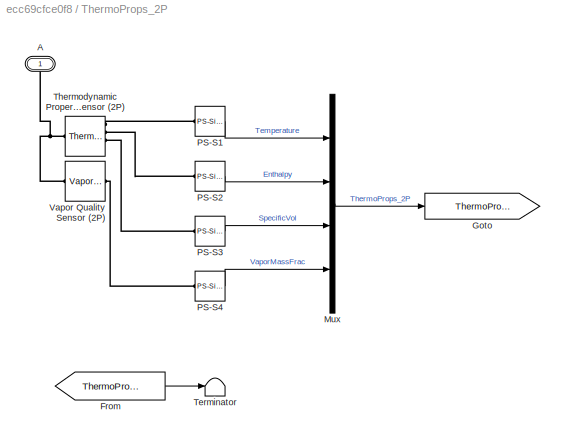
BLOCK [SubSystem] ThermoProps_2P
  Description = Simscape Probe
  InitFcn = %unit=get_param([gcb '/PS-S'],'Unit');                                              \n%set_param(gcb, 'AttributesFormatString', strcat('[', unit,']'));
  NameChangeFcn = set_param([gcb '/Goto'],'GotoTag', [get(gcbh,'name')]);\nset_param([gcb '/From'],'GotoTag', [get(gcbh,'name')]);\n%h = get_param([gcb, '/PS-S'], 'PortHandles');\n%set(h.Outport(1), 'SignalNameFromLabel', [get(gcbh,'name')])\n%clear h;
  OpenFcn = if exist('logsout', 'var')\n  vname = get(gcbh,'name');                 \n  fHandle = findall(0,'Tag',vname);                         \n  if isempty(fHandle)                                        \n  figure('Tag',vname);                                       \n  end;                                                       \n  figure(findobj('Tag',vname));                             \n  subplot(2,2,1);\n  ...<+1040ch>
  Ports = [0, 0, 0, 0, 0, 1]
  RequestExecContextInheritance = off
BLOCK [PMIOPort] ThermoProps_2P/A
  Side = Left
BLOCK [From] ThermoProps_2P/From
  GotoTag = ThermoProps_2P
BLOCK [Goto] ThermoProps_2P/Goto
  GotoTag = ThermoProps_2P
BLOCK [Mux] ThermoProps_2P/Mux
  DisplayOption = bar
  Ports = [4, 1]
BLOCK [Reference] ThermoProps_2P/PS-S1  REF=nesl_utility/PS-Simulink
Converter
  Ports = [0, 1, 0, 0, 0, 1]
  SourceBlock = nesl_utility/PS-Simulink\nConverter
  SourceProductBaseCode = SS
  SourceProductName = Simscape
  SourceType = PS-Simulink\nConverter
BLOCK [Reference] ThermoProps_2P/PS-S2  REF=nesl_utility/PS-Simulink
Converter
  Ports = [0, 1, 0, 0, 0, 1]
  SourceBlock = nesl_utility/PS-Simulink\nConverter
  SourceProductBaseCode = SS
  SourceProductName = Simscape
  SourceType = PS-Simulink\nConverter
BLOCK [Reference] ThermoProps_2P/PS-S3  REF=nesl_utility/PS-Simulink
Converter
  Ports = [0, 1, 0, 0, 0, 1]
  SourceBlock = nesl_utility/PS-Simulink\nConverter
  SourceProductBaseCode = SS
  SourceProductName = Simscape
  SourceType = PS-Simulink\nConverter
BLOCK [Reference] ThermoProps_2P/PS-S4  REF=nesl_utility/PS-Simulink
Converter
  Ports = [0, 1, 0, 0, 0, 1]
  SourceBlock = nesl_utility/PS-Simulink\nConverter
  SourceProductBaseCode = SS
  SourceProductName = Simscape
  SourceType = PS-Simulink\nConverter
BLOCK [Terminator] ThermoProps_2P/Terminator
BLOCK [Reference] ThermoProps_2P/Thermodynamic Properties Sensor (2P)  REF=fl_lib/Two-Phase Fluid/Sensors/Thermodynamic
Properties Sensor
(2P)
  Ports = [0, 0, 0, 0, 0, 1, 4]
  SourceBlock = fl_lib/Two-Phase Fluid/Sensors/Thermodynamic\nProperties Sensor\n(2P)
  SourceProductBaseCode = SS
  SourceProductName = Simscape
  SourceType = Thermodynamic\nProperties Sensor\n(2P)
BLOCK [Reference] ThermoProps_2P/Vapor Quality Sensor (2P)  REF=fl_lib/Two-Phase Fluid/Sensors/Vapor Quality Sensor
(2P)
  Ports = [0, 0, 0, 0, 0, 1, 1]
  SourceBlock = fl_lib/Two-Phase Fluid/Sensors/Vapor Quality Sensor\n(2P)
  SourceProductBaseCode = SS
  SourceProductName = Simscape
  SourceType = Vapor Quality Sensor\n(2P)
BLOCK [SubSystem] Torque
  AttributesFormatString = [N*m]
  Description = Simscape Probe
  InitFcn = unit=get_param([gcb '/PS-S'],'Unit');                                              \nset_param(gcb, 'AttributesFormatString', strcat('[', unit,']'));
  OpenFcn = if exist('logsout', 'var')\n  vname = get(gcbh,'name');                 \n  fHandle = findall(0,'Tag',vname);                         \n  if isempty(fHandle)                                        \n  figure('Tag',vname);                                       \n  end;                                                       \n  figure(findobj('Tag',vname));                             \n  plot(logsout.getEl...<+210ch>
  Ports = [0, 0, 0, 0, 0, 1, 1]
  RequestExecContextInheritance = off
BLOCK [PMIOPort] Torque/C
  Port = 2
  Side = Right
BLOCK [From] Torque/From
  GotoTag = Torque
BLOCK [Goto] Torque/Goto
  GotoTag = Torque
BLOCK [Reference] Torque/Ideal Torque Sensor  REF=fl_lib/Mechanical/Mechanical Sensors/Ideal Torque Sensor
  Ports = [0, 0, 0, 0, 0, 1, 2]
  SourceBlock = fl_lib/Mechanical/Mechanical Sensors/Ideal Torque Sensor
  SourceProductBaseCode = SS
  SourceProductName = Simscape
  SourceType = Ideal Torque Sensor
BLOCK [Reference] Torque/PS-S  REF=nesl_utility/PS-Simulink
Converter
  Ports = [0, 1, 0, 0, 0, 1]
  SourceBlock = nesl_utility/PS-Simulink\nConverter
  SourceProductBaseCode = SS
  SourceProductName = Simscape
  SourceType = PS-Simulink\nConverter
BLOCK [PMIOPort] Torque/R
  Side = Left
BLOCK [Terminator] Torque/Terminator
BLOCK [Reference] Translational Damper  REF=fl_lib/Mechanical/Translational
Elements/Translational Damper
  Ports = [0, 0, 0, 0, 0, 1, 1]
  SourceBlock = fl_lib/Mechanical/Translational\nElements/Translational Damper
  SourceProductBaseCode = SS
  SourceProductName = Simscape
  SourceType = Translational Damper
BLOCK [Reference] Translational Mechanical Converter (2P)  REF=fl_lib/Two-Phase Fluid/Elements/Translational
Mechanical Converter
(2P)
  Ports = [0, 0, 0, 0, 0, 3, 1]
  SourceBlock = fl_lib/Two-Phase Fluid/Elements/Translational\nMechanical Converter\n(2P)
  SourceProductBaseCode = SS
  SourceProductName = Simscape
  SourceType = Translational\nMechanical Converter\n(2P)
BLOCK [Reference] Translational Spring  REF=fl_lib/Mechanical/Translational
Elements/Translational Spring
  Ports = [0, 0, 0, 0, 0, 1, 1]
  SourceBlock = fl_lib/Mechanical/Translational\nElements/Translational Spring
  SourceProductBaseCode = SS
  SourceProductName = Simscape
  SourceType = Translational Spring
BLOCK [Reference] Two-Phase Fluid Properties (2P)  REF=fl_lib/Two-Phase Fluid/Utilities/Two-Phase Fluid
Properties (2P)
  Ports = [0, 0, 0, 0, 0, 0, 1]
  SourceBlock = fl_lib/Two-Phase Fluid/Utilities/Two-Phase Fluid\nProperties (2P)
  SourceProductBaseCode = SS
  SourceProductName = Simscape
  SourceType = Two-Phase Fluid\nProperties (2P)
BLOCK [SubSystem] VaporMassFraction_2P
  AttributesFormatString = [-]
  Description = Simscape Probe
  InitFcn = unit=get_param([gcb '/PS-S'],'Unit');                                              \nset_param(gcb, 'AttributesFormatString', '[-]');
  OpenFcn = if exist('logsout', 'var')\n  vname = get(gcbh,'name');                 \n  fHandle = findall(0,'Tag',vname);                         \n  if isempty(fHandle)                                        \n  figure('Tag',vname);                                       \n  end;                                                       \n  figure(findobj('Tag',vname));                             \n  plot(logsout.getEl...<+187ch>
  Ports = [0, 0, 0, 0, 0, 1]
  RequestExecContextInheritance = off
BLOCK [PMIOPort] VaporMassFraction_2P/A
  Side = Left
BLOCK [From] VaporMassFraction_2P/From
  GotoTag = VaporMassFraction_2P
BLOCK [Goto] VaporMassFraction_2P/Goto
  GotoTag = VaporMassFraction_2P
BLOCK [Reference] VaporMassFraction_2P/PS-S  REF=nesl_utility/PS-Simulink
Converter
  Ports = [0, 1, 0, 0, 0, 1]
  SourceBlock = nesl_utility/PS-Simulink\nConverter
  SourceProductBaseCode = SS
  SourceProductName = Simscape
  SourceType = PS-Simulink\nConverter
BLOCK [Terminator] VaporMassFraction_2P/Terminator
BLOCK [Reference] VaporMassFraction_2P/Thermodynamic Properties Sensor (2P)  REF=fl_lib/Two-Phase Fluid/Sensors/Thermodynamic
Properties Sensor
(2P)
  Ports = [0, 0, 0, 0, 0, 1, 4]
  SourceBlock = fl_lib/Two-Phase Fluid/Sensors/Thermodynamic\nProperties Sensor\n(2P)
  SourceProductBaseCode = SS
  SourceProductName = Simscape
  SourceType = Thermodynamic\nProperties Sensor\n(2P)
BLOCK [Reference] VaporMassFraction_2P/Vapor Quality Sensor (2P)  REF=fl_lib/Two-Phase Fluid/Sensors/Vapor Quality Sensor
(2P)
  Ports = [0, 0, 0, 0, 0, 1, 1]
  SourceBlock = fl_lib/Two-Phase Fluid/Sensors/Vapor Quality Sensor\n(2P)
  SourceProductBaseCode = SS
  SourceProductName = Simscape
  SourceType = Vapor Quality Sensor\n(2P)
BLOCK [SubSystem] Velocity
  AttributesFormatString = [m/s]
  Description = Simscape Probe
  InitFcn = unit=get_param([gcb '/PS-S'],'Unit');                                              \nset_param(gcb, 'AttributesFormatString', strcat('[', unit,']'));
  Ports = [0, 0, 0, 0, 0, 1]
  RequestExecContextInheritance = off
BLOCK [From] Velocity/From
  GotoTag = Velocity
BLOCK [Goto] Velocity/Goto
  GotoTag = Velocity
BLOCK [Reference] Velocity/Ideal Translational Motion Sensor  REF=fl_lib/Mechanical/Mechanical Sensors/Ideal Translational
Motion Sensor
  Ports = [0, 0, 0, 0, 0, 1, 3]
  SourceBlock = fl_lib/Mechanical/Mechanical Sensors/Ideal Translational\nMotion Sensor
  SourceProductBaseCode = SS
  SourceProductName = Simscape
  SourceType = Ideal Translational\nMotion Sensor
BLOCK [Reference] Velocity/Mechanical Translational Reference  REF=fl_lib/Mechanical/Translational
Elements/Mechanical
Translational
Reference
  Ports = [0, 0, 0, 0, 0, 1]
  SourceBlock = fl_lib/Mechanical/Translational\nElements/Mechanical\nTranslational\nReference
  SourceProductBaseCode = SS
  SourceProductName = Simscape
  SourceType = Mechanical\nTranslational\nReference
BLOCK [Reference] Velocity/PS-S  REF=nesl_utility/PS-Simulink
Converter
  Ports = [0, 1, 0, 0, 0, 1]
  SourceBlock = nesl_utility/PS-Simulink\nConverter
  SourceProductBaseCode = SS
  SourceProductName = Simscape
  SourceType = PS-Simulink\nConverter
BLOCK [PMIOPort] Velocity/R
  Side = Left
BLOCK [Terminator] Velocity/Terminator
BLOCK [SubSystem] Voltage
  AttributesFormatString = [V]
  Description = Simscape Probe
  InitFcn = unit=get_param([gcb '/PS-S'],'Unit');                                              \nset_param(gcb, 'AttributesFormatString', strcat('[', unit,']'));
  Ports = [0, 0, 0, 0, 0, 1]
  RequestExecContextInheritance = off
BLOCK [Reference] Voltage/Electrical Reference  REF=fl_lib/Electrical/Electrical Elements/Electrical Reference
  Ports = [0, 0, 0, 0, 0, 1]
  SourceBlock = fl_lib/Electrical/Electrical Elements/Electrical Reference
  SourceProductBaseCode = SS
  SourceProductName = Simscape
  SourceType = Electrical Reference
BLOCK [From] Voltage/From
  GotoTag = Voltage
BLOCK [Goto] Voltage/Goto
  GotoTag = Voltage
BLOCK [Reference] Voltage/PS-S  REF=nesl_utility/PS-Simulink
Converter
  Ports = [0, 1, 0, 0, 0, 1]
  SourceBlock = nesl_utility/PS-Simulink\nConverter
  SourceProductBaseCode = SS
  SourceProductName = Simscape
  SourceType = PS-Simulink\nConverter
BLOCK [Terminator] Voltage/Terminator
BLOCK [Reference] Voltage/Voltage Sensor  REF=fl_lib/Electrical/Electrical Sensors/Voltage Sensor
  Ports = [0, 0, 0, 0, 0, 1, 2]
  SourceBlock = fl_lib/Electrical/Electrical Sensors/Voltage Sensor
  SourceProductBaseCode = SS
  SourceProductName = Simscape
  SourceType = Voltage Sensor
BLOCK [PMIOPort] Voltage/p
  Side = Left
BLOCK [SubSystem] VolumetricFlow_2P
  AttributesFormatString = [m^3/s]
  Description = Simscape Probe
  InitFcn = unit=get_param([gcb '/PS-S'],'Unit');                                              \nset_param(gcb, 'AttributesFormatString', strcat('[', unit,']'));
  Ports = [0, 0, 0, 0, 0, 1, 1]
  RequestExecContextInheritance = off
BLOCK [PMIOPort] VolumetricFlow_2P/A
  Side = Left
BLOCK [PMIOPort] VolumetricFlow_2P/B
  Port = 2
  Side = Right
BLOCK [From] VolumetricFlow_2P/From
  GotoTag = VolumetricFlow_2P
BLOCK [Goto] VolumetricFlow_2P/Goto
  GotoTag = VolumetricFlow_2P
BLOCK [Reference] VolumetricFlow_2P/PS-S  REF=nesl_utility/PS-Simulink
Converter
  Ports = [0, 1, 0, 0, 0, 1]
  SourceBlock = nesl_utility/PS-Simulink\nConverter
  SourceProductBaseCode = SS
  SourceProductName = Simscape
  SourceType = PS-Simulink\nConverter
BLOCK [Terminator] VolumetricFlow_2P/Terminator
BLOCK [Reference] VolumetricFlow_2P/Volumetric Flow Sensor (2P)  REF=fl_lib/Two-Phase Fluid/Sensors/Volumetric Flow Rate
Sensor (2P)
  Ports = [0, 0, 0, 0, 0, 1, 2]
  SourceBlock = fl_lib/Two-Phase Fluid/Sensors/Volumetric Flow Rate\nSensor (2P)
  SourceProductBaseCode = SS
  SourceProductName = Simscape
  SourceType = Volumetric Flow Rate\nSensor (2P)
BLOCK [SubSystem] dAngVel
  AttributesFormatString = [rad/s]
  Description = Simscape Probe
  InitFcn = unit=get_param([gcb '/PS-S'],'Unit');                                              \nset_param(gcb, 'AttributesFormatString', strcat('[', unit,']'));
  OpenFcn = if exist('logsout', 'var')\n  vname = get(gcbh,'name');                 \n  fHandle = findall(0,'Tag',vname);                         \n  if isempty(fHandle)                                        \n  figure('Tag',vname);                                       \n  end;                                                       \n  figure(findobj('Tag',vname));                             \n  plot(logsout.getEl...<+220ch>
  Ports = [0, 0, 0, 0, 0, 1, 1]
  RequestExecContextInheritance = off
BLOCK [PMIOPort] dAngVel/C
  Port = 2
  Side = Right
BLOCK [From] dAngVel/From
  GotoTag = dAngVel
BLOCK [Goto] dAngVel/Goto
  GotoTag = dAngVel
BLOCK [Reference] dAngVel/Ideal Rotational Motion Sensor  REF=fl_lib/Mechanical/Mechanical Sensors/Ideal Rotational
Motion Sensor
  Ports = [0, 0, 0, 0, 0, 1, 3]
  SourceBlock = fl_lib/Mechanical/Mechanical Sensors/Ideal Rotational\nMotion Sensor
  SourceProductBaseCode = SS
  SourceProductName = Simscape
  SourceType = Ideal Rotational\nMotion Sensor
BLOCK [Reference] dAngVel/PS-S  REF=nesl_utility/PS-Simulink
Converter
  Ports = [0, 1, 0, 0, 0, 1]
  SourceBlock = nesl_utility/PS-Simulink\nConverter
  SourceProductBaseCode = SS
  SourceProductName = Simscape
  SourceType = PS-Simulink\nConverter
BLOCK [PMIOPort] dAngVel/R
  Side = Left
BLOCK [Terminator] dAngVel/Terminator
BLOCK [SubSystem] dAngle
  AttributesFormatString = [rad]
  Description = Simscape Probe
  InitFcn = unit=get_param([gcb '/PS-S'],'Unit');                                              \nset_param(gcb, 'AttributesFormatString', strcat('[', unit,']'));
  Ports = [0, 0, 0, 0, 0, 1, 1]
  RequestExecContextInheritance = off
BLOCK [PMIOPort] dAngle/C
  Port = 2
  Side = Right
BLOCK [From] dAngle/From
  GotoTag = dAngle
BLOCK [Goto] dAngle/Goto
  GotoTag = dAngle
BLOCK [Reference] dAngle/Ideal Rotational Motion Sensor  REF=fl_lib/Mechanical/Mechanical Sensors/Ideal Rotational
Motion Sensor
  Ports = [0, 0, 0, 0, 0, 1, 3]
  SourceBlock = fl_lib/Mechanical/Mechanical Sensors/Ideal Rotational\nMotion Sensor
  SourceProductBaseCode = SS
  SourceProductName = Simscape
  SourceType = Ideal Rotational\nMotion Sensor
BLOCK [Reference] dAngle/PS-S  REF=nesl_utility/PS-Simulink
Converter
  Ports = [0, 1, 0, 0, 0, 1]
  SourceBlock = nesl_utility/PS-Simulink\nConverter
  SourceProductBaseCode = SS
  SourceProductName = Simscape
  SourceType = PS-Simulink\nConverter
BLOCK [PMIOPort] dAngle/R
  Side = Left
BLOCK [Terminator] dAngle/Terminator
BLOCK [SubSystem] dEnergy_2P
  AttributesFormatString = [kJ/kg]
  Description = Simscape Probe
  InitFcn = unit=get_param([gcb '/PS-S'],'Unit');                                              \nset_param(gcb, 'AttributesFormatString', strcat('[', unit,']'));
  Ports = [0, 0, 0, 0, 0, 1, 1]
  RequestExecContextInheritance = off
BLOCK [PMIOPort] dEnergy_2P/A
  Side = Left
BLOCK [PMIOPort] dEnergy_2P/B
  Port = 2
  Side = Right
BLOCK [From] dEnergy_2P/From
  GotoTag = dEnergy_2P
BLOCK [Goto] dEnergy_2P/Goto
  GotoTag = dEnergy_2P
BLOCK [Reference] dEnergy_2P/PS-S  REF=nesl_utility/PS-Simulink
Converter
  Ports = [0, 1, 0, 0, 0, 1]
  SourceBlock = nesl_utility/PS-Simulink\nConverter
  SourceProductBaseCode = SS
  SourceProductName = Simscape
  SourceType = PS-Simulink\nConverter
BLOCK [Reference] dEnergy_2P/Pressure & Internal Energy Sensor (2P)  REF=fl_lib/Two-Phase Fluid/Sensors/Pressure & Internal
Energy Sensor (2P)
  Ports = [0, 0, 0, 0, 0, 1, 3]
  SourceBlock = fl_lib/Two-Phase Fluid/Sensors/Pressure & Internal\nEnergy Sensor (2P)
  SourceProductBaseCode = SS
  SourceProductName = Simscape
  SourceType = Pressure & Internal\nEnergy Sensor (2P)
BLOCK [Terminator] dEnergy_2P/Terminator
BLOCK [SubSystem] dGasPressure
  AttributesFormatString = [Pa]
  Description = Simscape Probe
  InitFcn = unit=get_param([gcb '/PS-S'],'Unit');                                              \nset_param(gcb, 'AttributesFormatString', strcat('[', unit,']'));
  Ports = [0, 0, 0, 0, 0, 1, 1]
  RequestExecContextInheritance = off
BLOCK [PMIOPort] dGasPressure/A
  Side = Left
BLOCK [PMIOPort] dGasPressure/B
  Port = 2
  Side = Right
BLOCK [From] dGasPressure/From
  GotoTag = dGasPressure
BLOCK [Goto] dGasPressure/Goto
  GotoTag = dGasPressure
BLOCK [Reference] dGasPressure/PS-S  REF=nesl_utility/PS-Simulink
Converter
  Ports = [0, 1, 0, 0, 0, 1]
  SourceBlock = nesl_utility/PS-Simulink\nConverter
  SourceProductBaseCode = SS
  SourceProductName = Simscape
  SourceType = PS-Simulink\nConverter
BLOCK [Reference] dGasPressure/Pneumatic Pressure & Temperature Sensor  REF=Pneumatic_lib/Pneumatic Sensors/Pneumatic Pressure &
Temperature Sensor
  Ports = [0, 0, 0, 0, 0, 1, 3]
  SourceBlock = Pneumatic_lib/Pneumatic Sensors/Pneumatic Pressure &\nTemperature Sensor
  SourceType = Pneumatic Pressure &\nTemperature Sensor
BLOCK [Terminator] dGasPressure/Terminator
BLOCK [SubSystem] dGasTemperature
  AttributesFormatString = [K]
  Description = Simscape Probe
  InitFcn = unit=get_param([gcb '/PS-S'],'Unit');                                              \nset_param(gcb, 'AttributesFormatString', strcat('[', unit,']'));
  Ports = [0, 0, 0, 0, 0, 1, 1]
  RequestExecContextInheritance = off
BLOCK [PMIOPort] dGasTemperature/A
  Side = Left
BLOCK [PMIOPort] dGasTemperature/B
  Port = 2
  Side = Right
BLOCK [From] dGasTemperature/From
  GotoTag = dGasTemperature
BLOCK [Goto] dGasTemperature/Goto
  GotoTag = dGasTemperature
BLOCK [Reference] dGasTemperature/PS-S  REF=nesl_utility/PS-Simulink
Converter
  Ports = [0, 1, 0, 0, 0, 1]
  SourceBlock = nesl_utility/PS-Simulink\nConverter
  SourceProductBaseCode = SS
  SourceProductName = Simscape
  SourceType = PS-Simulink\nConverter
BLOCK [Reference] dGasTemperature/Pneumatic Pressure & Temperature Sensor  REF=Pneumatic_lib/Pneumatic Sensors/Pneumatic Pressure &
Temperature Sensor
  Ports = [0, 0, 0, 0, 0, 1, 3]
  SourceBlock = Pneumatic_lib/Pneumatic Sensors/Pneumatic Pressure &\nTemperature Sensor
  SourceType = Pneumatic Pressure &\nTemperature Sensor
BLOCK [Terminator] dGasTemperature/Terminator
BLOCK [SubSystem] dMMF
  AttributesFormatString = [A]
  Description = Simscape Probe
  InitFcn = unit=get_param([gcb '/PS-S'],'Unit');                                              \nset_param(gcb, 'AttributesFormatString', strcat('[', unit,']'));
  OpenFcn = if exist('logsout', 'var')\n  vname = get(gcbh,'name');                 \n  fHandle = findall(0,'Tag',vname);                         \n  if isempty(fHandle)                                        \n  figure('Tag',vname);                                       \n  end;                                                       \n  figure(findobj('Tag',vname));                             \n  plot(logsout.getEl...<+207ch>
  Ports = [0, 0, 0, 0, 0, 1, 1]
  RequestExecContextInheritance = off
BLOCK [From] dMMF/From
  GotoTag = dMMF
BLOCK [Goto] dMMF/Goto
  GotoTag = dMMF
BLOCK [Reference] dMMF/MMF Sensor  REF=fl_lib/Magnetic/Magnetic Sensors/MMF Sensor
  Ports = [0, 0, 0, 0, 0, 1, 2]
  SourceBlock = fl_lib/Magnetic/Magnetic Sensors/MMF Sensor
  SourceProductBaseCode = SS
  SourceProductName = Simscape
  SourceType = MMF Sensor
BLOCK [PMIOPort] dMMF/N
  Side = Left
BLOCK [Reference] dMMF/PS-S  REF=nesl_utility/PS-Simulink
Converter
  Ports = [0, 1, 0, 0, 0, 1]
  SourceBlock = nesl_utility/PS-Simulink\nConverter
  SourceProductBaseCode = SS
  SourceProductName = Simscape
  SourceType = PS-Simulink\nConverter
BLOCK [PMIOPort] dMMF/S
  Port = 2
  Side = Right
BLOCK [Terminator] dMMF/Terminator
BLOCK [SubSystem] dPosition
  AttributesFormatString = [m]
  Description = Simscape Probe
  InitFcn = unit=get_param([gcb '/PS-S'],'Unit');                                              \nset_param(gcb, 'AttributesFormatString', strcat('[', unit,']'));
  Ports = [0, 0, 0, 0, 0, 1, 1]
  RequestExecContextInheritance = off
BLOCK [PMIOPort] dPosition/C
  Port = 2
  Side = Right
BLOCK [From] dPosition/From
  GotoTag = dPosition
BLOCK [Goto] dPosition/Goto
  GotoTag = dPosition
BLOCK [Reference] dPosition/Ideal Translational Motion Sensor  REF=fl_lib/Mechanical/Mechanical Sensors/Ideal Translational
Motion Sensor
  Ports = [0, 0, 0, 0, 0, 1, 3]
  SourceBlock = fl_lib/Mechanical/Mechanical Sensors/Ideal Translational\nMotion Sensor
  SourceProductBaseCode = SS
  SourceProductName = Simscape
  SourceType = Ideal Translational\nMotion Sensor
BLOCK [Reference] dPosition/PS-S  REF=nesl_utility/PS-Simulink
Converter
  Ports = [0, 1, 0, 0, 0, 1]
  SourceBlock = nesl_utility/PS-Simulink\nConverter
  SourceProductBaseCode = SS
  SourceProductName = Simscape
  SourceType = PS-Simulink\nConverter
BLOCK [PMIOPort] dPosition/R
  Side = Left
BLOCK [Terminator] dPosition/Terminator
BLOCK [SubSystem] dPressure
  AttributesFormatString = [Pa]
  Description = Simscape Probe
  InitFcn = unit=get_param([gcb '/PS-S'],'Unit');                                             \nset_param(gcb, 'AttributesFormatString', strcat('[', unit,']'));
  Ports = [0, 0, 0, 0, 0, 1, 1]
  RequestExecContextInheritance = off
BLOCK [PMIOPort] dPressure/A
  Side = Left
BLOCK [PMIOPort] dPressure/B
  Port = 2
  Side = Right
BLOCK [From] dPressure/From
  GotoTag = dPressure
BLOCK [Goto] dPressure/Goto
  GotoTag = dPressure
BLOCK [Reference] dPressure/Ideal Hydraulic Pressure Sensor  REF=fl_lib/Hydraulic/Hydraulic Sensors/Hydraulic Pressure
Sensor
  Ports = [0, 0, 0, 0, 0, 1, 2]
  SourceBlock = fl_lib/Hydraulic/Hydraulic Sensors/Hydraulic Pressure\nSensor
  SourceProductBaseCode = SS
  SourceProductName = Simscape
  SourceType = Hydraulic Pressure\nSensor
BLOCK [Reference] dPressure/PS-S  REF=nesl_utility/PS-Simulink
Converter
  Ports = [0, 1, 0, 0, 0, 1]
  SourceBlock = nesl_utility/PS-Simulink\nConverter
  SourceProductBaseCode = SS
  SourceProductName = Simscape
  SourceType = PS-Simulink\nConverter
BLOCK [Terminator] dPressure/Terminator
BLOCK [SubSystem] dPressure_2P
  AttributesFormatString = [Pa]
  Description = Simscape Probe
  InitFcn = unit=get_param([gcb '/PS-S'],'Unit');                                              \nset_param(gcb, 'AttributesFormatString', strcat('[', unit,']'));
  Ports = [0, 0, 0, 0, 0, 1, 1]
  RequestExecContextInheritance = off
BLOCK [PMIOPort] dPressure_2P/A
  Side = Left
BLOCK [PMIOPort] dPressure_2P/B
  Port = 2
  Side = Right
BLOCK [From] dPressure_2P/From
  GotoTag = dPressure_2P
BLOCK [Goto] dPressure_2P/Goto
  GotoTag = dPressure_2P
BLOCK [Reference] dPressure_2P/PS-S  REF=nesl_utility/PS-Simulink
Converter
  Ports = [0, 1, 0, 0, 0, 1]
  SourceBlock = nesl_utility/PS-Simulink\nConverter
  SourceProductBaseCode = SS
  SourceProductName = Simscape
  SourceType = PS-Simulink\nConverter
BLOCK [Reference] dPressure_2P/Pressure & Internal Energy Sensor (2P)  REF=fl_lib/Two-Phase Fluid/Sensors/Pressure & Internal
Energy Sensor (2P)
  Ports = [0, 0, 0, 0, 0, 1, 3]
  SourceBlock = fl_lib/Two-Phase Fluid/Sensors/Pressure & Internal\nEnergy Sensor (2P)
  SourceProductBaseCode = SS
  SourceProductName = Simscape
  SourceType = Pressure & Internal\nEnergy Sensor (2P)
BLOCK [Terminator] dPressure_2P/Terminator
BLOCK [SubSystem] dPressure_TL
  AttributesFormatString = [Pa]
  Description = Simscape Probe
  InitFcn = unit=get_param([gcb '/PS-S'],'Unit');                                              \nset_param(gcb, 'AttributesFormatString', strcat('[', unit,']'));
  Ports = [0, 0, 0, 0, 0, 1, 1]
  RequestExecContextInheritance = off
BLOCK [PMIOPort] dPressure_TL/A
  Side = Left
BLOCK [PMIOPort] dPressure_TL/B
  Port = 2
  Side = Right
BLOCK [From] dPressure_TL/From
  GotoTag = dPressure_TL
BLOCK [Goto] dPressure_TL/Goto
  GotoTag = dPressure_TL
BLOCK [Reference] dPressure_TL/PS-S  REF=nesl_utility/PS-Simulink
Converter
  Ports = [0, 1, 0, 0, 0, 1]
  SourceBlock = nesl_utility/PS-Simulink\nConverter
  SourceProductBaseCode = SS
  SourceProductName = Simscape
  SourceType = PS-Simulink\nConverter
BLOCK [Reference] dPressure_TL/Pressure & Temperature Sensor (TL)  REF=fl_lib/Thermal Liquid/Sensors/Pressure &
Temperature Sensor
(TL)
  Ports = [0, 0, 0, 0, 0, 1, 3]
  SourceBlock = fl_lib/Thermal Liquid/Sensors/Pressure &\nTemperature Sensor\n(TL)
  SourceProductBaseCode = SS
  SourceProductName = Simscape
  SourceType = Pressure &\nTemperature Sensor\n(TL)
BLOCK [Terminator] dPressure_TL/Terminator
BLOCK [SubSystem] dTemperature
  AttributesFormatString = [K]
  Description = Simscape Probe
  InitFcn = unit=get_param([gcb '/PS-S'],'Unit');                                              \nset_param(gcb, 'AttributesFormatString', strcat('[', unit,']'));
  Ports = [0, 0, 0, 0, 0, 1, 1]
  RequestExecContextInheritance = off
BLOCK [PMIOPort] dTemperature/A
  Side = Left
BLOCK [PMIOPort] dTemperature/B
  Port = 2
  Side = Right
BLOCK [From] dTemperature/From
  GotoTag = dTemperature
BLOCK [Goto] dTemperature/Goto
  GotoTag = dTemperature
BLOCK [Reference] dTemperature/Ideal Temperature Sensor  REF=fl_lib/Thermal/Thermal Sensors/Temperature Sensor
  Ports = [0, 0, 0, 0, 0, 1, 2]
  SourceBlock = fl_lib/Thermal/Thermal Sensors/Temperature Sensor
  SourceProductBaseCode = SS
  SourceProductName = Simscape
  SourceType = Temperature Sensor
BLOCK [Reference] dTemperature/PS-S  REF=nesl_utility/PS-Simulink
Converter
  Ports = [0, 1, 0, 0, 0, 1]
  SourceBlock = nesl_utility/PS-Simulink\nConverter
  SourceProductBaseCode = SS
  SourceProductName = Simscape
  SourceType = PS-Simulink\nConverter
BLOCK [Terminator] dTemperature/Terminator
BLOCK [SubSystem] dTemperature_TL
  AttributesFormatString = [K]
  Description = Simscape Probe
  InitFcn = unit=get_param([gcb '/PS-S'],'Unit');                                              \nset_param(gcb, 'AttributesFormatString', strcat('[', unit,']'));
  Ports = [0, 0, 0, 0, 0, 1, 1]
  RequestExecContextInheritance = off
BLOCK [PMIOPort] dTemperature_TL/A
  Side = Left
BLOCK [PMIOPort] dTemperature_TL/B
  Port = 2
  Side = Right
BLOCK [From] dTemperature_TL/From
  GotoTag = dTemperature_TL
BLOCK [Goto] dTemperature_TL/Goto
  GotoTag = dTemperature_TL
BLOCK [Reference] dTemperature_TL/PS-S  REF=nesl_utility/PS-Simulink
Converter
  Ports = [0, 1, 0, 0, 0, 1]
  SourceBlock = nesl_utility/PS-Simulink\nConverter
  SourceProductBaseCode = SS
  SourceProductName = Simscape
  SourceType = PS-Simulink\nConverter
BLOCK [Reference] dTemperature_TL/Pressure & Temperature Sensor (TL)  REF=fl_lib/Thermal Liquid/Sensors/Pressure &
Temperature Sensor
(TL)
  Ports = [0, 0, 0, 0, 0, 1, 3]
  SourceBlock = fl_lib/Thermal Liquid/Sensors/Pressure &\nTemperature Sensor\n(TL)
  SourceProductBaseCode = SS
  SourceProductName = Simscape
  SourceType = Pressure &\nTemperature Sensor\n(TL)
BLOCK [Terminator] dTemperature_TL/Terminator
BLOCK [SubSystem] dVelocity
  AttributesFormatString = [m/s]
  Description = Simscape Probe
  InitFcn = unit=get_param([gcb '/PS-S'],'Unit');                                              \nset_param(gcb, 'AttributesFormatString', strcat('[', unit,']'));
  Ports = [0, 0, 0, 0, 0, 1, 1]
  RequestExecContextInheritance = off
BLOCK [PMIOPort] dVelocity/C
  Port = 2
  Side = Right
BLOCK [From] dVelocity/From
  GotoTag = dVelocity
BLOCK [Goto] dVelocity/Goto
  GotoTag = dVelocity
BLOCK [Reference] dVelocity/Ideal Translational Motion Sensor  REF=fl_lib/Mechanical/Mechanical Sensors/Ideal Translational
Motion Sensor
  Ports = [0, 0, 0, 0, 0, 1, 3]
  SourceBlock = fl_lib/Mechanical/Mechanical Sensors/Ideal Translational\nMotion Sensor
  SourceProductBaseCode = SS
  SourceProductName = Simscape
  SourceType = Ideal Translational\nMotion Sensor
BLOCK [Reference] dVelocity/PS-S  REF=nesl_utility/PS-Simulink
Converter
  Ports = [0, 1, 0, 0, 0, 1]
  SourceBlock = nesl_utility/PS-Simulink\nConverter
  SourceProductBaseCode = SS
  SourceProductName = Simscape
  SourceType = PS-Simulink\nConverter
BLOCK [PMIOPort] dVelocity/R
  Side = Left
BLOCK [Terminator] dVelocity/Terminator
BLOCK [SubSystem] dVoltage
  AttributesFormatString = [V]
  Description = Simscape Probe
  InitFcn = unit=get_param([gcb '/PS-S'],'Unit');                                              \nset_param(gcb, 'AttributesFormatString', strcat('[', unit,']'));
  Ports = [0, 0, 0, 0, 0, 1, 1]
  RequestExecContextInheritance = off
BLOCK [From] dVoltage/From
  GotoTag = dVoltage
BLOCK [Goto] dVoltage/Goto
  GotoTag = dVoltage
BLOCK [Reference] dVoltage/PS-S  REF=nesl_utility/PS-Simulink
Converter
  Ports = [0, 1, 0, 0, 0, 1]
  SourceBlock = nesl_utility/PS-Simulink\nConverter
  SourceProductBaseCode = SS
  SourceProductName = Simscape
  SourceType = PS-Simulink\nConverter
BLOCK [Terminator] dVoltage/Terminator
BLOCK [Reference] dVoltage/Voltage Sensor  REF=fl_lib/Electrical/Electrical Sensors/Voltage Sensor
  Ports = [0, 0, 0, 0, 0, 1, 2]
  SourceBlock = fl_lib/Electrical/Electrical Sensors/Voltage Sensor
  SourceProductBaseCode = SS
  SourceProductName = Simscape
  SourceType = Voltage Sensor
BLOCK [PMIOPort] dVoltage/m
  Port = 2
  Side = Right
BLOCK [PMIOPort] dVoltage/p
  Side = Left
LINE Gain:1 -> Simulink-PS Converter6:1
LINE Sine Wave1:1 -> Simulink-PS Converter1:1
LINE Sine Wave2:1 -> Simulink-PS Converter2:1
LINE Sine Wave3:1 -> Simulink-PS Converter3:1
LINE Sine Wave4:1 -> Simulink-PS Converter4:1
LINE Sine Wave5:1 -> Simulink-PS Converter5:1
LINE Sine Wave6:1 -> Gain:1
LINE Sine Wave7:1 -> Simulink-PS Converter7:1
LINE Sine Wave8:1 -> Simulink-PS Converter8:1
LINE Sine Wave:1 -> Simulink-PS Converter:1
PNET net1: AbsPressure:LConn1 -- AbsTemperature:LConn1 -- AtmTemperature:LConn1 -- GasHeatFlow:RConn1 -- GaugePressure:LConn1 -- Pneumatic Resistive Tube1:LConn1 -- dGasPressure:LConn1 -- dGasTemperature:LConn1
PNET net2: AbsPressure_2P:LConn1 -- InternalEnergy_2P:LConn1 -- Translational Mechanical Converter (2P):LConn1 -- VolumetricFlow_2P:RConn1
PNET net3: AbsPressure_TL:LConn1 -- AbsTemperature_TL:LConn1 -- Local Restriction (TL):LConn1 -- ThermalFlux_TL:RConn1 -- dPressure_TL:LConn1 -- dTemperature_TL:LConn1
PNET net4: AbsTemp_2P:LConn1 -- EnergyFlow_2P:LConn1 -- Enthalpy_2P:LConn1 -- MassFlow_2P:RConn1 -- SpecificVol_2P:LConn1 -- ThermoProps_2P:LConn1 -- VaporMassFraction_2P:LConn1
PNET net5: AngVel:LConn1 -- Angle:LConn1 -- Inertia:LConn1 -- Rotational Spring:LConn1 -- Torque:RConn1 -- dAngVel:LConn1 -- dAngle:LConn1
PNET net6: Conductive Heat Transfer:LConn1 -- HeatFlow:RConn1 -- Temperature:LConn1 -- dTemperature:LConn1
PNET net7: Conductive Heat Transfer:RConn1 -- Ideal Heat Flow Source:RConn2 -- Solver Configuration5:RConn1 -- Thermal Reference:LConn1 -- dTemperature:RConn1
PNET net8: Constant Area Hydraulic Orifice:LConn1 -- Flow:RConn1 -- Pressure:LConn1 -- dPressure:LConn1
PNET net9: Constant Area Hydraulic Orifice:RConn1 -- Hydraulic Pressure Source:RConn2 -- Hydraulic Reference:LConn1 -- Solver Configuration4:RConn1 -- dPressure:RConn1
PLINE Controlled MMF Source:LConn1 -- Flux:LConn1
PLINE Controlled MMF Source:RConn1 -- Simulink-PS Converter1:RConn1
PNET net10: Controlled MMF Source:RConn2 -- Magnetic Reference:LConn1 -- Reluctance:RConn1 -- Solver Configuration1:RConn1 -- dMMF:RConn1
PLINE Controlled Pneumatic Pressure Source:LConn1 -- MassFlow:LConn1
PNET net11: Controlled Pneumatic Pressure Source:RConn1 -- Gas Properties:RConn1 -- Pneumatic Absolute Reference:LConn1 -- Pneumatic Resistive Tube1:RConn1 -- Solver Configuration6:RConn1 -- dGasPressure:RConn1 -- dGasTemperature:RConn1
PLINE Controlled Pneumatic Pressure Source:RConn2 -- Simulink-PS Converter6:RConn1
PNET net12: Controlled Pressure Source (2P):LConn1 -- Reservoir (2P):LConn1 -- Solver Configuration9:RConn1 -- Two-Phase Fluid Properties (2P):RConn1
PLINE Controlled Pressure Source (2P):LConn2 -- Simulink-PS Converter8:RConn1
PNET net13: Controlled Pressure Source (2P):RConn1 -- Local Restriction (2P):LConn1 -- dEnergy_2P:LConn1 -- dPressure_2P:LConn1
PNET net14: Controlled Pressure Source (TL):LConn1 -- Local Restriction (TL):RConn1 -- Solver Configuration8:RConn1 -- Temperature Reservoir (TL):LConn1 -- dPressure_TL:RConn1 -- dTemperature_TL:RConn1
PLINE Controlled Pressure Source (TL):LConn2 -- Simulink-PS Converter7:RConn1
PLINE Controlled Pressure Source (TL):RConn1 -- MassFlow_TL:LConn1
PLINE Controlled Voltage Source:LConn1 -- Current:LConn1
PLINE Controlled Voltage Source:RConn1 -- Simulink-PS Converter:RConn1
PNET net15: Controlled Voltage Source:RConn2 -- Electrical Reference:LConn1 -- Resistor:RConn1 -- Solver Configuration:RConn1 -- dVoltage:RConn1
PNET net16: Current:RConn1 -- Resistor:LConn1 -- Voltage:LConn1 -- dVoltage:LConn1
PLINE EnergyFlow_2P:RConn1 -- VolumetricFlow_2P:LConn1
PLINE Flow:LConn1 -- Hydraulic Pressure Source:LConn1
PNET net17: Flux:RConn1 -- MMF:LConn1 -- Reluctance:LConn1 -- dMMF:LConn1
PLINE Force:LConn1 -- Ideal Force Source:LConn1
PNET net18: Force:RConn1 -- Mass:LConn1 -- Position:LConn1 -- Translational Spring:LConn1 -- Velocity:LConn1 -- dPosition:LConn1 -- dVelocity:LConn1
PLINE GasHeatFlow:LConn1 -- MassFlow:RConn1
PLINE HeatFlow:LConn1 -- Ideal Heat Flow Source:LConn1
PLINE Hydraulic Pressure Source:RConn1 -- Simulink-PS Converter4:RConn1
PLINE Ideal Force Source:RConn1 -- Simulink-PS Converter2:RConn1
PNET net19: Ideal Force Source:RConn2 -- Mechanical Translational Reference:LConn1 -- Solver Configuration2:RConn1 -- Translational Spring:RConn1 -- dPosition:RConn1 -- dVelocity:RConn1
PLINE Ideal Heat Flow Source:RConn1 -- Simulink-PS Converter5:RConn1
PLINE Ideal Torque Source:LConn1 -- Torque:LConn1
PLINE Ideal Torque Source:RConn1 -- Simulink-PS Converter3:RConn1
PNET net20: Ideal Torque Source:RConn2 -- Mechanical Rotational Reference:LConn1 -- Rotational Spring:RConn1 -- Solver Configuration3:RConn1 -- dAngVel:RConn1 -- dAngle:RConn1
PNET net21: Local Restriction (2P):RConn1 -- MassFlow_2P:LConn1 -- dEnergy_2P:RConn1 -- dPressure_2P:RConn1
PNET net22: Mass1:LConn1 -- Translational Damper:LConn1 -- Translational Mechanical Converter (2P):RConn1
PLINE MassFlow_TL:RConn1 -- ThermalFlux_TL:LConn1
PLINE Mechanical Translational Reference1:LConn1 -- Translational Mechanical Converter (2P):LConn2
PLINE Mechanical Translational Reference2:LConn1 -- Translational Damper:RConn1
PLINE Perfect Insulator:LConn1 -- Translational Mechanical Converter (2P):LConn3
PNET net23: PhysicalSignal:LConn1 -- Repeating Sequence:RConn1 -- Solver Configuration7:RConn1
note: PNET lines group multi-terminal physical nets as a canonical sorted terminal list (undirected conserving connections); 2-terminal nets keep the pairwise PLINE form
